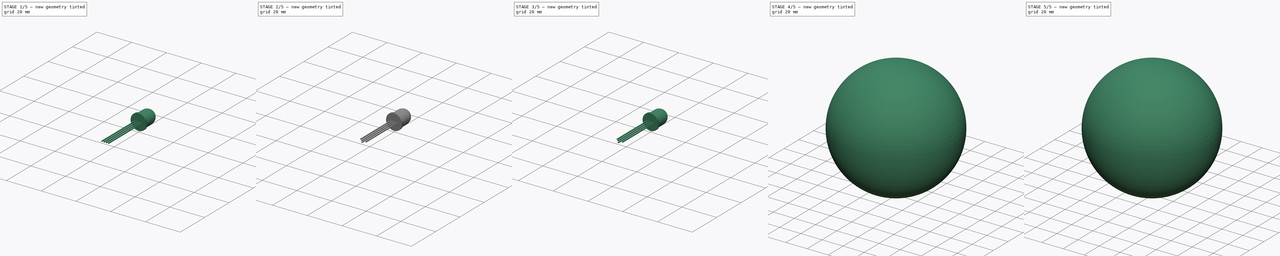
[diagram: build sequence overview — one tinted view per stage of 5, left to right]
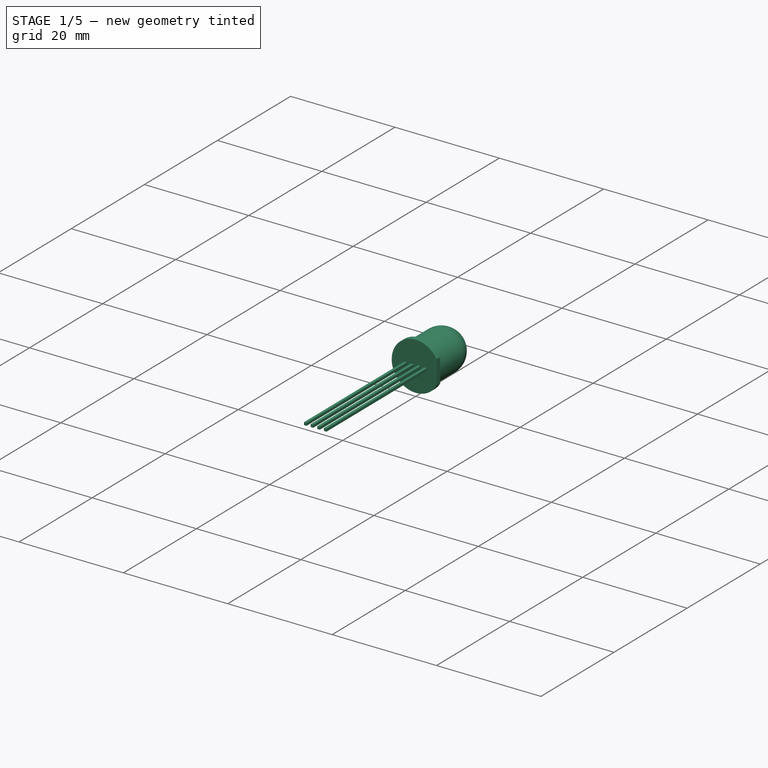
[diagram: stage 1 of 5 — iso view after this stage's code; geometry added in this stage tinted green]
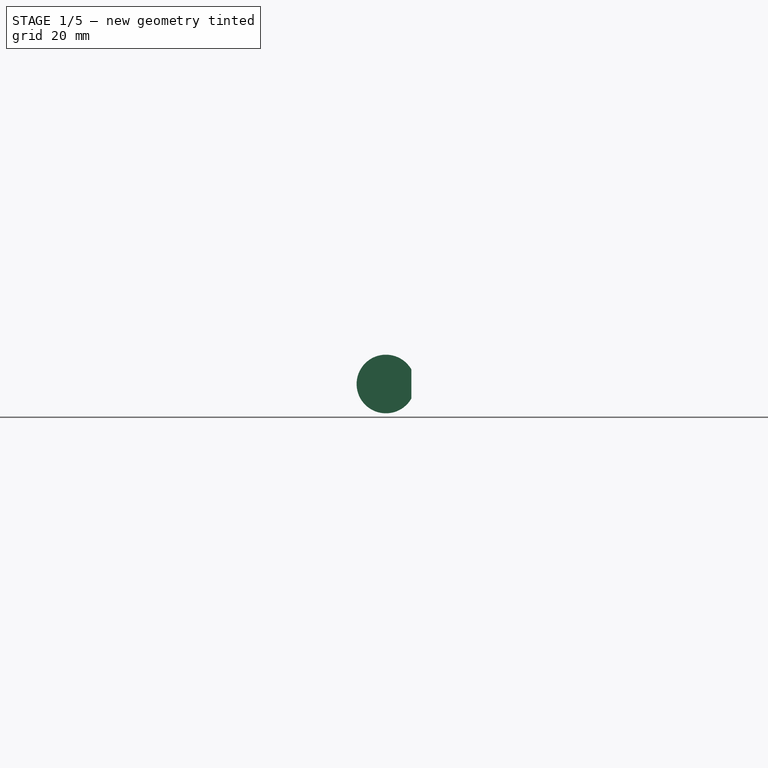
[diagram: stage 1 of 5 — front view after this stage's code; geometry added in this stage tinted green]
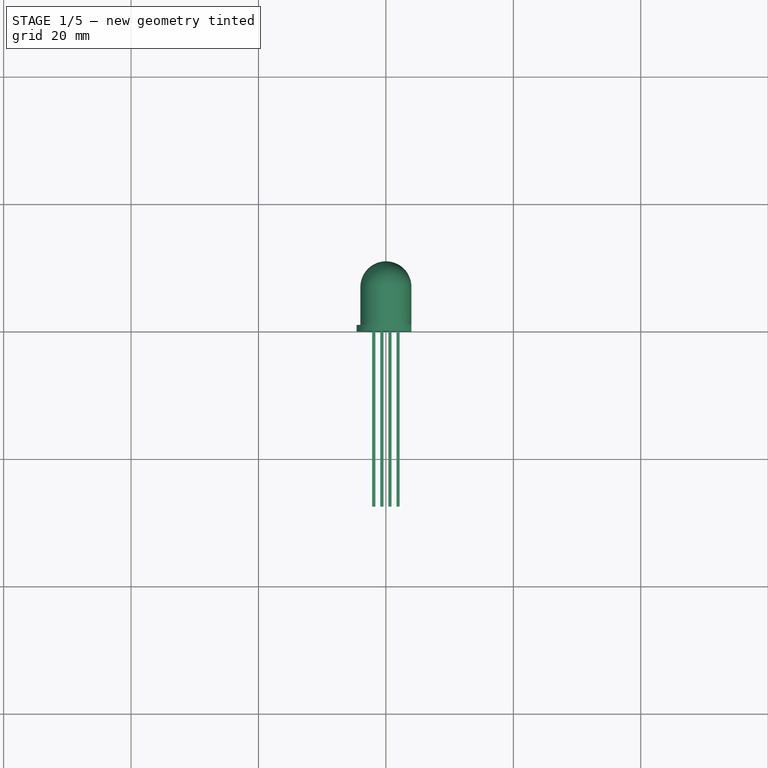
[diagram: stage 1 of 5 — top view after this stage's code; geometry added in this stage tinted green]
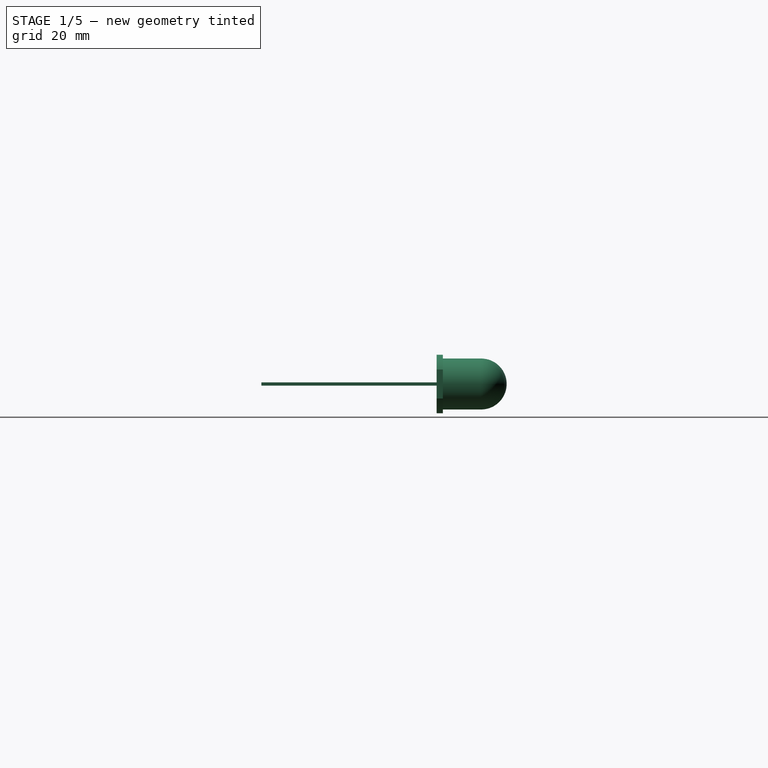
[diagram: stage 1 of 5 — right view after this stage's code; geometry added in this stage tinted green]
FCSTD DOCUMENT  (FreeCAD 0.20R26858 (Git))
Label: base
License: All rights reserved
LicenseURL: http://en.wikipedia.org/wiki/All_rights_reserved
objects: Part::Part2DObjectPython×27, Sketcher::SketchObject×17, Part::Feature×12, PartDesign::Pocket×9, App::DocumentObjectGroup×3, PartDesign::Revolution×3, PartDesign::Pad×3, PartDesign::CoordinateSystem×3, PartDesign::Body×3, Part::FeaturePython×2, Part::Compound×2, Spreadsheet::Sheet×1, Part::Sphere×1
note: 96 computed .brp shape members not serialized (recipe doc carries the construction recipe); baked Part::Feature solids carry a one-line shape summary decoded from their .brp

FEATURE [PartDesign::CoordinateSystem] Local_CS001
  AttacherType = Attacher::AttachEngine3D
  MapMode = 45
  Placement = pos=(-0.122799,0,-1e-16) rot=(-1,0,0;1.5708rad)
  Support = -> [Pocket003]
FEATURE [PartDesign::Body] Body001  label="LED001"
  AttacherType = Attacher::AttachEngine3D
  Group = -> [Sketch009,Revolution001,Sketch008,Pad001,Sketch010,Pocket004,Sketch011,Pocket005,Sketch007,Pocket003,Local_CS001]
  Origin = -> Origin001
  Placement = pos=(-5.34791,-6.43771,2.63235) rot=(-0.271177,-0.193279,-0.942924;0.367193rad)
  Tip = -> Pocket003
FEATURE [Part::Part2DObjectPython] Line020  # Draft 2D object (typed FeaturePython)
  Area = 0
  ChamferSize = 0
  Closed = false
  End = (-30.6974,-37.5716,12.0849)
  FilletRadius = 0
  Length = 50
  MakeFace = false
  Placement = pos=(0,0,0) rot=(-0.980459,0.124484,-0.152327;1.79059rad)
  Points = (2) [(0,0,0),(-17.3493,-4.3604,-46.6904)]
  Start = (0,0,0)
  Subdivisions = 0
FEATURE [Part::Part2DObjectPython] Line021  # Draft 2D object (typed FeaturePython)
  Area = 0
  ChamferSize = 0
  Closed = false
  End = (-26.4946,-42.3444,2.23328)
  FilletRadius = 0
  Length = 50
  MakeFace = false
  Placement = pos=(0,0,0) rot=(-0.980459,0.124484,-0.152327;1.79059rad)
  Points = (2) [(0,0,0),(-12.5207,6.24444,-48.0025)]
  Start = (0,0,0)
  Subdivisions = 0
FEATURE [Part::Part2DObjectPython] Line022  # Draft 2D object (typed FeaturePython)
  Area = 0
  ChamferSize = 0
  Closed = false
  End = (-20.8366,-44.788,-7.73798)
  FilletRadius = 0
  Length = 50
  MakeFace = false
  Placement = pos=(0,0,0) rot=(-0.980459,0.124484,-0.152327;1.79059rad)
  Points = (2) [(0,0,0),(-7.00538,16.5026,-46.6754)]
  Start = (0,0,0)
  Subdivisions = 0
FEATURE [Part::Part2DObjectPython] Line023  # Draft 2D object (typed FeaturePython)
  Area = 0
  ChamferSize = 0
  Closed = false
  End = (-14.7543,-44.8833,-16.3645)
  FilletRadius = 0
  Length = 50
  MakeFace = false
  Placement = pos=(0,0,0) rot=(-0.980459,0.124484,-0.152327;1.79059rad)
  Points = (2) [(0,0,0),(-1.70272,24.9753,-43.282)]
  Start = (0,0,0)
  Subdivisions = 0
FEATURE [Part::Part2DObjectPython] Line024  # Draft 2D object (typed FeaturePython)
  Area = 0
  ChamferSize = 0
  Closed = false
  End = (-20.7967,-43.6356,12.7841)
  FilletRadius = 0
  Length = 50
  MakeFace = false
  Placement = pos=(0,0,0) rot=(-0.980459,0.124484,-0.152327;1.79059rad)
  Points = (2) [(0,0,0),(-6.07004,-3.83788,-49.4816)]
  Start = (0,0,0)
  Subdivisions = 0
FEATURE [Part::Part2DObjectPython] Line025  # Draft 2D object (typed FeaturePython)
  Area = 0
  ChamferSize = 0
  Closed = false
  End = (-9.06672,-47.4842,12.769)
  FilletRadius = 0
  Length = 50
  MakeFace = false
  Placement = pos=(0,0,0) rot=(-0.980459,0.124484,-0.152327;1.79059rad)
  Points = (2) [(0,0,0),(6.25041,-3.05667,-49.5135)]
  Start = (0,0,0)
  Subdivisions = 0
FEATURE [Sketcher::SketchObject] Sketch014
  FullyConstrained = true
  MapMode = 5
  Support = -> [XY_Plane002]
  sketch-geometry (7):
    g0: ArcOfCircle CenterX=0 CenterY=7 CenterZ=0 NormalX=0 NormalY=0 NormalZ=1 AngleXU=0 Radius=4 StartAngle=0 EndAngle=1.5708
    g1: LineSegment StartX=0 StartY=7 StartZ=0 EndX=4 EndY=7 EndZ=0
    g2: LineSegment StartX=4 StartY=7 StartZ=0 EndX=4 EndY=1 EndZ=0
    g3: LineSegment StartX=4 StartY=1 StartZ=0 EndX=4.6 EndY=1 EndZ=0
    g4: LineSegment StartX=4.6 StartY=1 StartZ=0 EndX=4.6 EndY=0 EndZ=0
    g5: LineSegment StartX=4.6 StartY=0 StartZ=0 EndX=0 EndY=0 EndZ=0
    g6: LineSegment StartX=0 StartY=0 StartZ=0 EndX=2e-16 EndY=11 EndZ=0
  constraints (20):
    c: PointOnObject(g0,g-2)
    c: PointOnObject(g0,g-2)
    c: Radius(g0) = 4
    c: Coincident(g1,g0)
    c: Horizontal(g1)
    c: Coincident(g0,g1)
    c: Coincident(g2,g0)
    c: Vertical(g2)
    c: Coincident(g3,g2)
    c: Horizontal(g3)
    c: Coincident(g4,g3)
    c: PointOnObject(g4,g-1)
    c: Vertical(g4)
    c: Coincident(g5,g4)
    c: Coincident(g5,g-1)
    c: DistanceY(g4,g4) = 1
    c: Coincident(g6,g5)
    c: Coincident(g6,g0)
    c: DistanceY(g6,g6) = 11
    c: DistanceX(g5,g4) = 4.6
FEATURE [PartDesign::Revolution] Revolution002
  Angle = 360
  Axis = (0,1,0)
  Base = (0,0,0)
  Profile = -> Sketch014
  ReferenceAxis = -> Sketch014 [V_Axis]
FEATURE [Sketcher::SketchObject] Sketch013
  FullyConstrained = true
  MapMode = 5
  Placement = pos=(0,0,0) rot=(1,0,0;1.5708rad)
  Support = -> [Revolution002]
  sketch-geometry (16):
    g0: LineSegment StartX=0.385 StartY=0.25 StartZ=0 EndX=0.885 EndY=0.25 EndZ=0
    g1: LineSegment StartX=0.885 StartY=0.25 StartZ=0 EndX=0.885 EndY=-0.25 EndZ=0
    g2: LineSegment StartX=0.885 StartY=-0.25 StartZ=0 EndX=0.385 EndY=-0.25 EndZ=0
    g3: LineSegment StartX=0.385 StartY=-0.25 StartZ=0 EndX=0.385 EndY=0.25 EndZ=0
    g4: LineSegment StartX=1.655 StartY=0.25 StartZ=0 EndX=2.155 EndY=0.25 EndZ=0
    g5: LineSegment StartX=2.155 StartY=0.25 StartZ=0 EndX=2.155 EndY=-0.25 EndZ=0
    g6: LineSegment StartX=2.155 StartY=-0.25 StartZ=0 EndX=1.655 EndY=-0.25 EndZ=0
    g7: LineSegment StartX=1.655 StartY=-0.25 StartZ=0 EndX=1.655 EndY=0.25 EndZ=0
    g8: LineSegment StartX=-0.385 StartY=0.25 StartZ=0 EndX=-0.885 EndY=0.25 EndZ=0
    g9: LineSegment StartX=-0.885 StartY=0.25 StartZ=0 EndX=-0.885 EndY=-0.25 EndZ=0
    g10: LineSegment StartX=-0.885 StartY=-0.25 StartZ=0 EndX=-0.385 EndY=-0.25 EndZ=0
    g11: LineSegment StartX=-0.385 StartY=-0.25 StartZ=0 EndX=-0.385 EndY=0.25 EndZ=0
    g12: LineSegment StartX=-1.655 StartY=0.25 StartZ=0 EndX=-2.155 EndY=0.25 EndZ=0
    g13: LineSegment StartX=-2.155 StartY=0.25 StartZ=0 EndX=-2.155 EndY=-0.25 EndZ=0
    g14: LineSegment StartX=-2.155 StartY=-0.25 StartZ=0 EndX=-1.655 EndY=-0.25 EndZ=0
    g15: LineSegment StartX=-1.655 StartY=-0.25 StartZ=0 EndX=-1.655 EndY=0.25 EndZ=0
  constraints (42):
    c: Coincident(g0,g1)
    c: Coincident(g1,g2)
    c: Coincident(g2,g3)
    c: Coincident(g3,g0)
    c: Horizontal(g0)
    c: Horizontal(g2)
    c: Vertical(g3)
    c: Coincident(g4,g5)
    c: Coincident(g5,g6)
    c: Coincident(g6,g7)
    c: Coincident(g7,g4)
    c: Horizontal(g4)
    c: Horizontal(g6)
    c: Vertical(g7)
    c: Coincident(g8,g9)
    c: Coincident(g9,g10)
    c: Coincident(g10,g11)
    c: Coincident(g11,g8)
    c: Horizontal(g8)
    c: Horizontal(g10)
    c: Vertical(g9)
    c: Coincident(g12,g13)
    c: Coincident(g13,g14)
    c: Coincident(g14,g15)
    c: Coincident(g15,g12)
    c: Horizontal(g12)
    c: Horizontal(g14)
    c: Vertical(g13)
    c: DistanceX(g14,g14) = 0.5
    c: Equal(g8,g12)
    c: Equal(g0,g12)
    c: Equal(g12,g4)
    c: DistanceY(g15,g15) = 0.5
    c: Equal(g9,g13)
    c: Symmetric(g12,g14,g-1)
    c: Symmetric(g8,g10,g-1)
    c: Symmetric(g0,g1,g-1)
    c: Symmetric(g4,g5,g-1)
    c: Symmetric(g12,g4,g-2)
    c: Symmetric(g8,g0,g-2)
    c: DistanceX(g10,g1) = 1.27
    c: DistanceX(g14,g10) = 1.27
FEATURE [PartDesign::Pad] Pad002
  BaseFeature = -> Revolution002
  Direction = (0,-1,2e-16)
  Length = 27.5
  Length2 = 100
  Profile = -> Sketch013
  Type = 0
FEATURE [Sketcher::SketchObject] Sketch015
  FullyConstrained = false
  MapMode = 5
  Placement = pos=(0,0,0) rot=(1,0,0;1.5708rad)
  Support = -> [Pad002]
  sketch-geometry (5):
    g0: GeomPoint X=4 Y=0 Z=0
    g1: LineSegment StartX=4 StartY=3.04911 StartZ=0 EndX=4 EndY=-3.04911 EndZ=0
    g2: LineSegment StartX=4 StartY=-3.04911 StartZ=0 EndX=5 EndY=-3.04911 EndZ=0
    g3: LineSegment StartX=5 StartY=-3.04911 StartZ=0 EndX=5 EndY=3.04911 EndZ=0
    g4: LineSegment StartX=5 StartY=3.04911 StartZ=0 EndX=4 EndY=3.04911 EndZ=0
  constraints (12):
    c: PointOnObject(g0,g-1)
    c: DistanceX(g-1,g0) = 4
    c: Coincident(g2,g1)
    c: Horizontal(g2)
    c: Coincident(g3,g2)
    c: Vertical(g3)
    c: Coincident(g4,g3)
    c: Coincident(g4,g1)
    c: Horizontal(g4)
    c: PointOnObject(g0,g1)
    c: DistanceX(g4,g4) = 1
    c: Symmetric(g1,g1,g-1)
FEATURE [PartDesign::Pocket] Pocket007
  BaseFeature = -> Pad002
  Direction = (0,1,-2e-16)
  Length = 5
  Length2 = 100
  Profile = -> Sketch015
  Type = 0
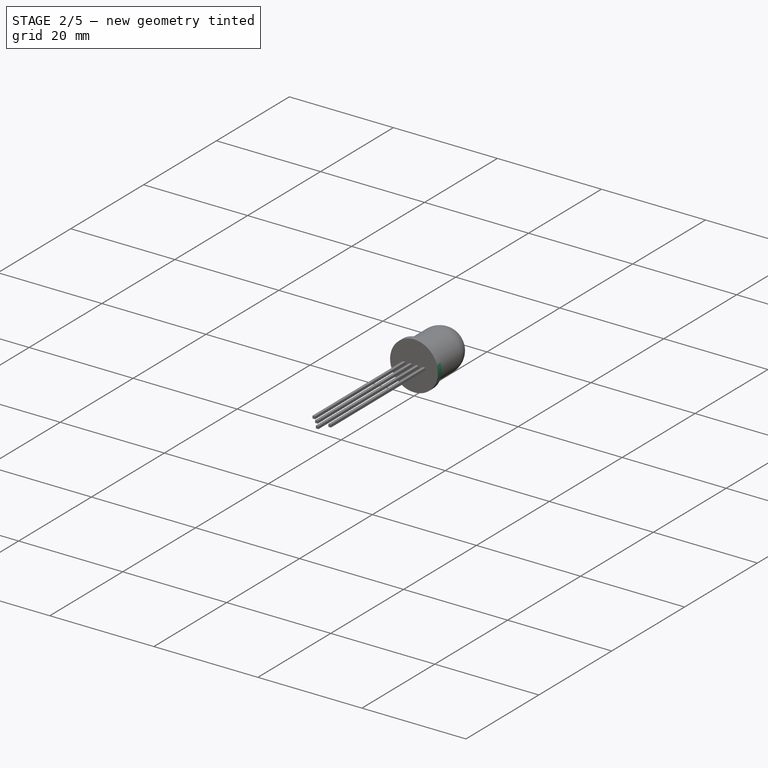
[diagram: stage 2 of 5 — iso view after this stage's code; geometry added in this stage tinted green]
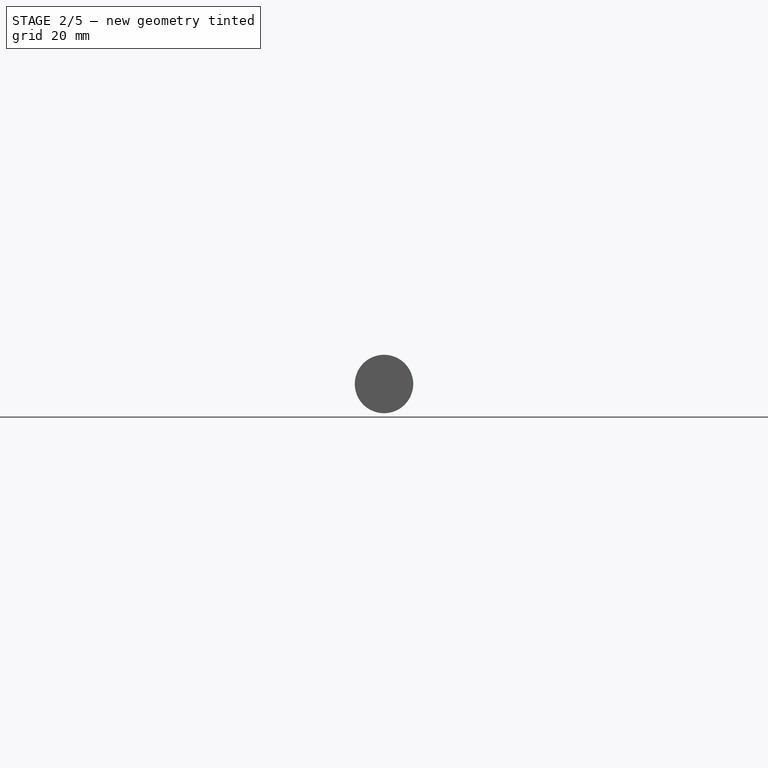
[diagram: stage 2 of 5 — front view after this stage's code; geometry added in this stage tinted green]
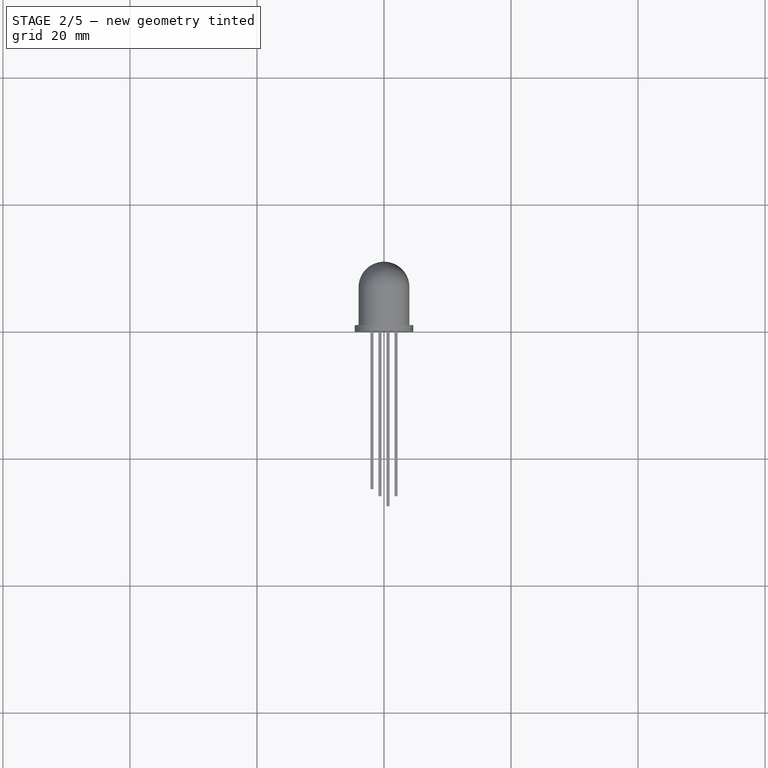
[diagram: stage 2 of 5 — top view after this stage's code; geometry added in this stage tinted green]
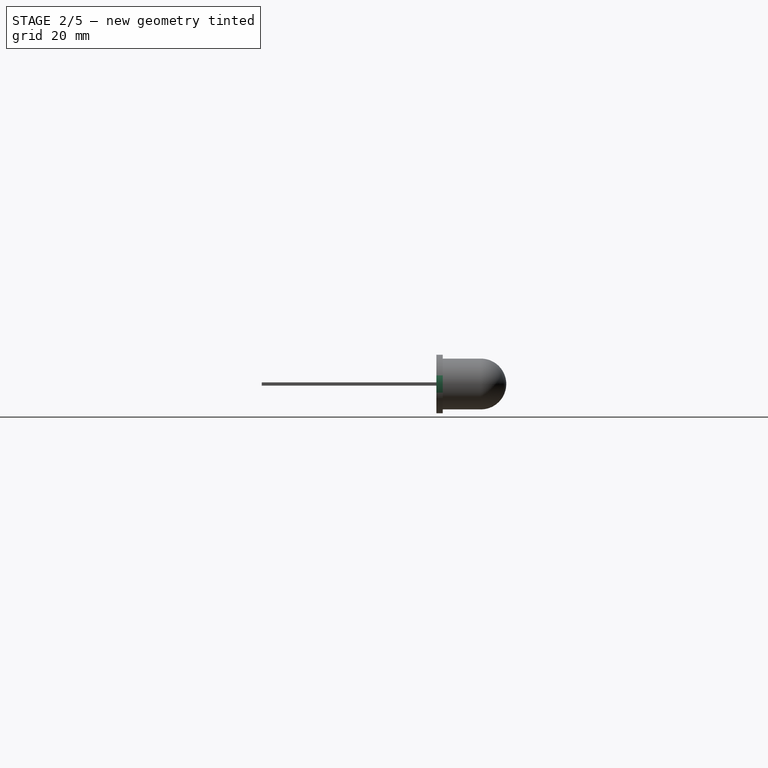
[diagram: stage 2 of 5 — right view after this stage's code; geometry added in this stage tinted green]
FEATURE [Sketcher::SketchObject] Sketch006
  ExternalGeometry = -> [Solid001,Polygon]
  FullyConstrained = false
  MapMode = 45
  Placement = pos=(-11.5751,-35.3006,7.08876) rot=(-0.846339,0.501972,0.178143;1.8016rad)
  Support = -> [Solid001]
  sketch-geometry (21):
    g0: LineSegment StartX=0 StartY=0 StartZ=0 EndX=-28.0194 EndY=6.58998 EndZ=0
    g1: LineSegment StartX=-21.2054 StartY=4.98735 StartZ=0 EndX=6.2835 EndY=-20.8581 EndZ=0
    g2: LineSegment StartX=6.2835 StartY=-20.8581 StartZ=0 EndX=14.9219 EndY=15.8707 EndZ=0
    g3: LineSegment StartX=14.9219 StartY=15.8707 StartZ=0 EndX=-21.2054 EndY=4.98735 EndZ=0
    g4: Circle CenterX=0 CenterY=0 CenterZ=0 NormalX=0 NormalY=0 NormalZ=1 AngleXU=0 Radius=21.784
    g5: LineSegment StartX=-21.2054 StartY=4.98735 StartZ=0 EndX=-12.1736 EndY=7.70819 EndZ=0
    g6: LineSegment StartX=-12.1736 StartY=7.70819 StartZ=0 EndX=-3.14175 EndY=10.429 EndZ=0
    g7: LineSegment StartX=-3.14175 StartY=10.429 StartZ=0 EndX=5.89005 EndY=13.1499 EndZ=0
    g8: LineSegment StartX=5.89005 StartY=13.1499 StartZ=0 EndX=14.9219 EndY=15.8707 EndZ=0
    g9: Circle CenterX=14.9219 CenterY=15.8707 CenterZ=0 NormalX=0 NormalY=0 NormalZ=1 AngleXU=0 Radius=1.47713
    g10: Circle CenterX=5.89005 CenterY=13.1499 CenterZ=0 NormalX=0 NormalY=0 NormalZ=1 AngleXU=0 Radius=1.54031
    g11: Circle CenterX=-3.14175 CenterY=10.429 CenterZ=0 NormalX=0 NormalY=0 NormalZ=1 AngleXU=0 Radius=1.61191
    g12: Circle CenterX=-12.1736 CenterY=7.70819 CenterZ=0 NormalX=0 NormalY=0 NormalZ=1 AngleXU=0 Radius=1.76005
    g13: Circle CenterX=-21.2054 CenterY=4.98735 CenterZ=0 NormalX=0 NormalY=0 NormalZ=1 AngleXU=0 Radius=1.99945
    g14: LineSegment StartX=-12.1736 StartY=7.70819 StartZ=0 EndX=8.44309 EndY=-11.6759 EndZ=0
    g15: LineSegment StartX=-3.14175 StartY=10.429 StartZ=0 EndX=-7.46093 EndY=-7.93535 EndZ=0
    g16: LineSegment StartX=5.89005 StartY=13.1499 StartZ=0 EndX=-0.588712 EndY=-14.3967 EndZ=0
    g17: GeomPoint X=1.57088 Y=-5.21451 Z=0
    g18: Circle CenterX=1.57088 CenterY=-5.21451 CenterZ=0 NormalX=0 NormalY=0 NormalZ=1 AngleXU=0 Radius=1.7396
    g19: GeomPoint X=-5.30134 Y=1.24684 Z=0
    g20: Circle CenterX=-5.30134 CenterY=1.24684 CenterZ=0 NormalX=0 NormalY=0 NormalZ=1 AngleXU=0 Radius=1.66954
  constraints (44):
    c: Coincident(g0,g-1)
    c: Coincident(g0,g-5)
    c: Coincident(g1,g2)
    c: Coincident(g2,g3)
    c: Coincident(g3,g1)
    c: Equal(g1,g2)
    c: Equal(g1,g3)
    c: PointOnObject(g1,g4)
    c: PointOnObject(g2,g4)
    c: PointOnObject(g3,g4)
    c: Coincident(g4,g-1)
    c: PointOnObject(g3,g0)
    c: Distance(g1,g0) = 7
    c: Coincident(g5,g1)
    c: Coincident(g6,g5)
    c: Equal(g5,g6)
    c: Equal(g6,g7)
    c: Equal(g7,g8)
    c: Coincident(g6,g7)
    c: Coincident(g8,g7)
    c: Coincident(g8,g2)
    c: PointOnObject(g7,g3)
    c: PointOnObject(g6,g3)
    c: PointOnObject(g5,g3)
    c: Coincident(g9,g2)
    c: Coincident(g10,g7)
    c: Coincident(g11,g6)
    c: Coincident(g12,g5)
    c: Coincident(g13,g1)
    c: Coincident(g14,g12)
    c: PointOnObject(g14,g2)
    c: Parallel(g14,g1)
    c: Coincident(g15,g11)
    c: PointOnObject(g15,g1)
    c: Parallel(g15,g2)
    c: Coincident(g16,g10)
    c: PointOnObject(g16,g1)
    c: Parallel(g16,g2)
    c: PointOnObject(g17,g16)
    c: PointOnObject(g17,g14)
    c: Coincident(g18,g17)
    c: PointOnObject(g19,g15)
    c: PointOnObject(g19,g14)
    c: Coincident(g20,g19)
FEATURE [Part::Part2DObjectPython] Line017  # Draft 2D object (typed FeaturePython)
  Area = 0
  ChamferSize = 0
  Closed = false
  End = (-33.0422,-31.4948,20.4031)
  FilletRadius = 0
  Length = 50
  MakeFace = false
  Placement = pos=(0,0,0) rot=(0.971158,-0.184628,-0.150882;1.39906rad)
  Points = (2) [(0,0,0),(-20.8877,13.7222,43.306)]
  Start = (0,0,0)
  Subdivisions = 0
FEATURE [Part::Part2DObjectPython] Line018  # Draft 2D object (typed FeaturePython)
  Area = 0
  ChamferSize = 0
  Closed = false
  End = (7.02351,-39.1776,17.7472)
  FilletRadius = 0
  Length = 43.5795
  MakeFace = false
  Placement = pos=(0,0,0) rot=(0.971158,-0.184628,-0.150882;1.39906rad)
  Points = (2) [(0,0,0),(19.4132,9.58938,37.8199)]
  Start = (0,0,0)
  Subdivisions = 0
FEATURE [Part::Part2DObjectPython] Line019  # Draft 2D object (typed FeaturePython)
  Area = 0
  ChamferSize = 0
  Closed = false
  End = (-12.8923,-39.2191,-14.2993)
  FilletRadius = 0
  Length = 41.4463
  MakeFace = false
  Placement = pos=(-1e-15,0,-10.6331) rot=(0.971158,-0.184628,-0.150882;1.39906rad)
  Points = (2) [(0,0,0),(-0.845353,-11.4033,39.8377)]
  Start = (-1e-15,0,-10.6331)
  Subdivisions = 0
FEATURE [Sketcher::SketchObject] Sketch009
  FullyConstrained = true
  MapMode = 5
  Support = -> [XY_Plane001]
  sketch-geometry (7):
    g0: ArcOfCircle CenterX=0 CenterY=7 CenterZ=0 NormalX=0 NormalY=0 NormalZ=1 AngleXU=0 Radius=4 StartAngle=0 EndAngle=1.5708
    g1: LineSegment StartX=0 StartY=7 StartZ=0 EndX=4 EndY=7 EndZ=0
    g2: LineSegment StartX=4 StartY=7 StartZ=0 EndX=4 EndY=1 EndZ=0
    g3: LineSegment StartX=4 StartY=1 StartZ=0 EndX=4.6 EndY=1 EndZ=0
    g4: LineSegment StartX=4.6 StartY=1 StartZ=0 EndX=4.6 EndY=0 EndZ=0
    g5: LineSegment StartX=4.6 StartY=0 StartZ=0 EndX=0 EndY=0 EndZ=0
    g6: LineSegment StartX=0 StartY=0 StartZ=0 EndX=2e-16 EndY=11 EndZ=0
  constraints (20):
    c: PointOnObject(g0,g-2)
    c: PointOnObject(g0,g-2)
    c: Radius(g0) = 4
    c: Coincident(g1,g0)
    c: Horizontal(g1)
    c: Coincident(g0,g1)
    c: Coincident(g2,g0)
    c: Vertical(g2)
    c: Coincident(g3,g2)
    c: Horizontal(g3)
    c: Coincident(g4,g3)
    c: PointOnObject(g4,g-1)
    c: Vertical(g4)
    c: Coincident(g5,g4)
    c: Coincident(g5,g-1)
    c: DistanceY(g4,g4) = 1
    c: Coincident(g6,g5)
    c: Coincident(g6,g0)
    c: DistanceY(g6,g6) = 11
    c: DistanceX(g5,g4) = 4.6
FEATURE [PartDesign::Revolution] Revolution001
  Angle = 360
  Axis = (0,1,0)
  Base = (0,0,0)
  Profile = -> Sketch009
  ReferenceAxis = -> Sketch009 [V_Axis]
FEATURE [Sketcher::SketchObject] Sketch016
  ExternalGeometry = -> [Pocket007]
  FullyConstrained = true
  MapMode = 5
  Placement = pos=(0,-27.5,6.1e-15) rot=(1,0,0;1.5708rad)
  Support = -> [Pocket007]
  sketch-geometry (4):
    g0: LineSegment StartX=-2.155 StartY=0.25 StartZ=0 EndX=-1.655 EndY=0.25 EndZ=0
    g1: LineSegment StartX=-1.655 StartY=0.25 StartZ=0 EndX=-1.655 EndY=-0.25 EndZ=0
    g2: LineSegment StartX=-1.655 StartY=-0.25 StartZ=0 EndX=-2.155 EndY=-0.25 EndZ=0
    g3: LineSegment StartX=-2.155 StartY=-0.25 StartZ=0 EndX=-2.155 EndY=0.25 EndZ=0
  constraints (10):
    c: Coincident(g0,g1)
    c: Coincident(g1,g2)
    c: Coincident(g2,g3)
    c: Coincident(g3,g0)
    c: Horizontal(g0)
    c: Horizontal(g2)
    c: Vertical(g1)
    c: Vertical(g3)
    c: Coincident(g0,g-3)
    c: Coincident(g1,g-4)
FEATURE [PartDesign::Pocket] Pocket008
  BaseFeature = -> Pocket007
  Direction = (0,1,-2e-16)
  Length = 2.7
  Length2 = 100
  Profile = -> Sketch016
  Type = 0
FEATURE [Sketcher::SketchObject] Sketch012
  ExternalGeometry = -> [Pocket008]
  FullyConstrained = true
  MapMode = 5
  Placement = pos=(0,-27.5,6.1e-15) rot=(1,0,0;1.5708rad)
  Support = -> [Pocket008]
  sketch-geometry (8):
    g0: LineSegment StartX=-0.885 StartY=0.25 StartZ=0 EndX=-0.385 EndY=0.25 EndZ=0
    g1: LineSegment StartX=-0.385 StartY=0.25 StartZ=0 EndX=-0.385 EndY=-0.25 EndZ=0
    g2: LineSegment StartX=-0.385 StartY=-0.25 StartZ=0 EndX=-0.885 EndY=-0.25 EndZ=0
    g3: LineSegment StartX=-0.885 StartY=-0.25 StartZ=0 EndX=-0.885 EndY=0.25 EndZ=0
    g4: LineSegment StartX=2.155 StartY=-0.25 StartZ=0 EndX=1.655 EndY=-0.25 EndZ=0
    g5: LineSegment StartX=1.655 StartY=-0.25 StartZ=0 EndX=1.655 EndY=0.25 EndZ=0
    g6: LineSegment StartX=1.655 StartY=0.25 StartZ=0 EndX=2.155 EndY=0.25 EndZ=0
    g7: LineSegment StartX=2.155 StartY=0.25 StartZ=0 EndX=2.155 EndY=-0.25 EndZ=0
  constraints (20):
    c: Coincident(g0,g1)
    c: Coincident(g1,g2)
    c: Coincident(g2,g3)
    c: Coincident(g3,g0)
    c: Horizontal(g0)
    c: Horizontal(g2)
    c: Vertical(g1)
    c: Vertical(g3)
    c: Coincident(g0,g-3)
    c: Coincident(g1,g-4)
    c: Coincident(g4,g5)
    c: Coincident(g5,g6)
    c: Coincident(g6,g7)
    c: Coincident(g7,g4)
    c: Horizontal(g4)
    c: Horizontal(g6)
    c: Vertical(g5)
    c: Vertical(g7)
    c: Coincident(g4,g-6)
    c: Coincident(g5,g-5)
FEATURE [PartDesign::Pocket] Pocket006
  BaseFeature = -> Pocket008
  Direction = (0,1,-2e-16)
  Length = 1.6
  Length2 = 100
  Profile = -> Sketch012
  Type = 0
FEATURE [PartDesign::CoordinateSystem] Local_CS002
  AttacherType = Attacher::AttachEngine3D
  MapMode = 45
  Placement = pos=(-0.122799,0,-1e-16) rot=(-1,0,0;1.5708rad)
  Support = -> [Pocket006]
FEATURE [PartDesign::Body] Body002  label="LED002"
  AttacherType = Attacher::AttachEngine3D
  Group = -> [Sketch014,Revolution002,Sketch013,Pad002,Sketch015,Pocket007,Sketch016,Pocket008,Sketch012,Pocket006,Local_CS002]
  Origin = -> Origin002
  Placement = pos=(-20.6386,-42.1549,13.2146) rot=(-0.383421,-0.044745,-0.922489;3.66299rad)
  Tip = -> Pocket006
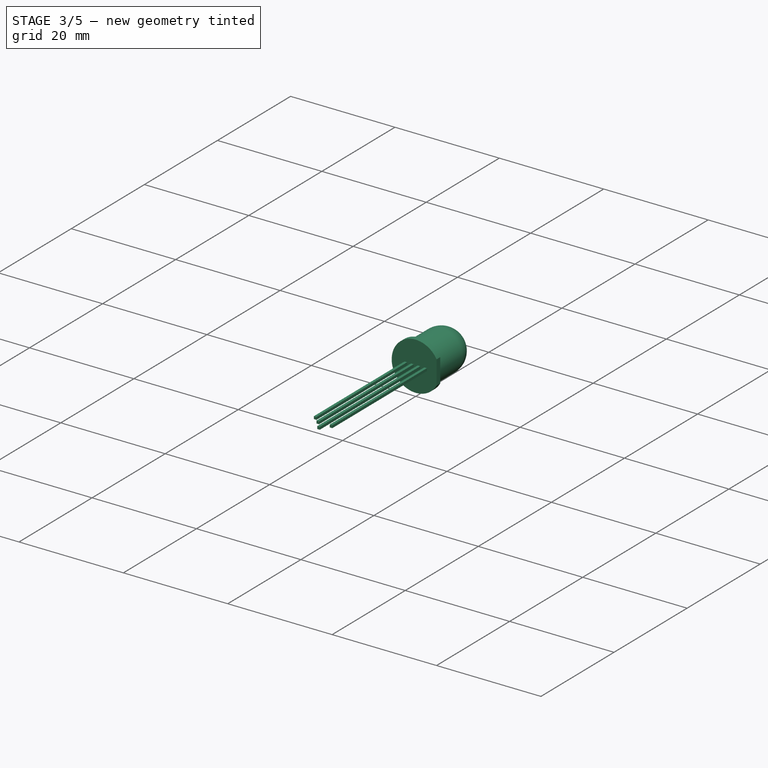
[diagram: stage 3 of 5 — iso view after this stage's code; geometry added in this stage tinted green]
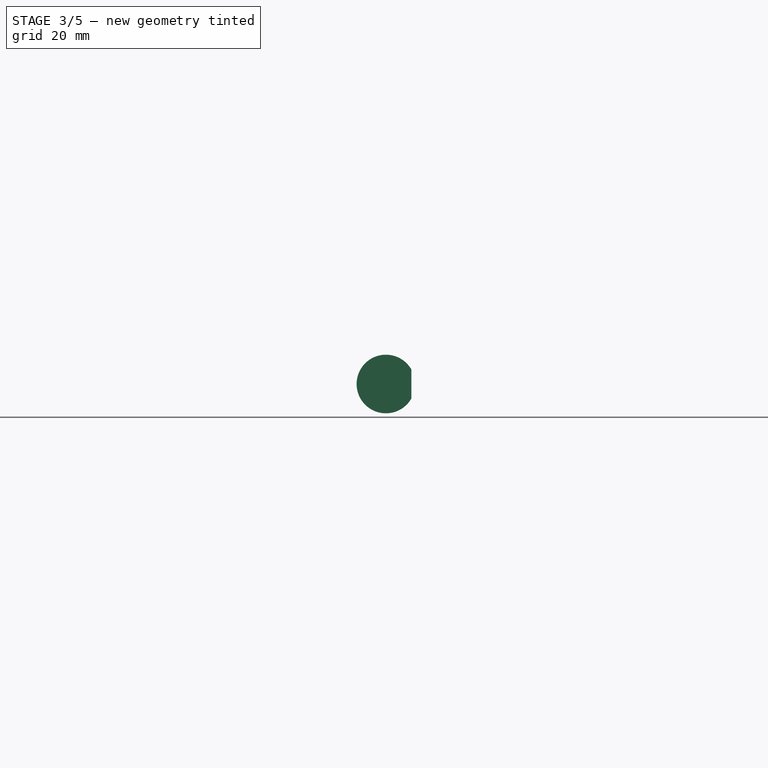
[diagram: stage 3 of 5 — front view after this stage's code; geometry added in this stage tinted green]
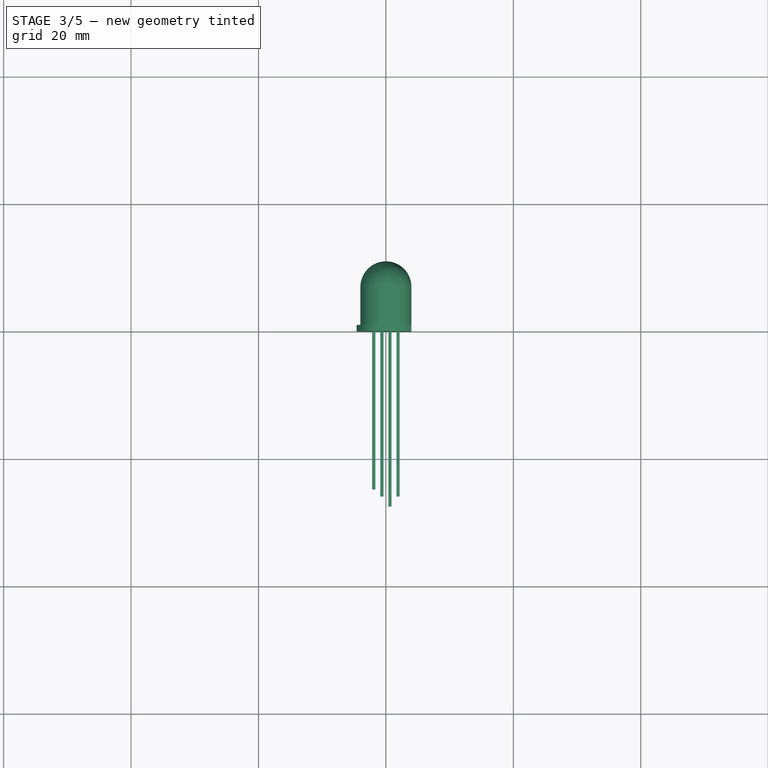
[diagram: stage 3 of 5 — top view after this stage's code; geometry added in this stage tinted green]
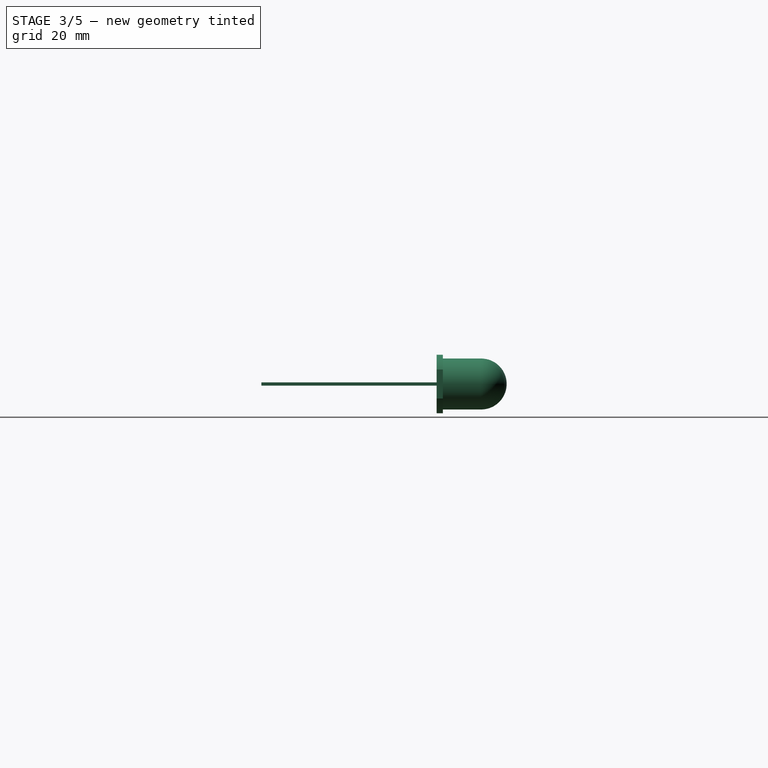
[diagram: stage 3 of 5 — right view after this stage's code; geometry added in this stage tinted green]
FEATURE [Sketcher::SketchObject] Sketch008
  FullyConstrained = true
  MapMode = 5
  Placement = pos=(0,0,0) rot=(1,0,0;1.5708rad)
  Support = -> [Revolution001]
  sketch-geometry (16):
    g0: LineSegment StartX=0.385 StartY=0.25 StartZ=0 EndX=0.885 EndY=0.25 EndZ=0
    g1: LineSegment StartX=0.885 StartY=0.25 StartZ=0 EndX=0.885 EndY=-0.25 EndZ=0
    g2: LineSegment StartX=0.885 StartY=-0.25 StartZ=0 EndX=0.385 EndY=-0.25 EndZ=0
    g3: LineSegment StartX=0.385 StartY=-0.25 StartZ=0 EndX=0.385 EndY=0.25 EndZ=0
    g4: LineSegment StartX=1.655 StartY=0.25 StartZ=0 EndX=2.155 EndY=0.25 EndZ=0
    g5: LineSegment StartX=2.155 StartY=0.25 StartZ=0 EndX=2.155 EndY=-0.25 EndZ=0
    g6: LineSegment StartX=2.155 StartY=-0.25 StartZ=0 EndX=1.655 EndY=-0.25 EndZ=0
    g7: LineSegment StartX=1.655 StartY=-0.25 StartZ=0 EndX=1.655 EndY=0.25 EndZ=0
    g8: LineSegment StartX=-0.385 StartY=0.25 StartZ=0 EndX=-0.885 EndY=0.25 EndZ=0
    g9: LineSegment StartX=-0.885 StartY=0.25 StartZ=0 EndX=-0.885 EndY=-0.25 EndZ=0
    g10: LineSegment StartX=-0.885 StartY=-0.25 StartZ=0 EndX=-0.385 EndY=-0.25 EndZ=0
    g11: LineSegment StartX=-0.385 StartY=-0.25 StartZ=0 EndX=-0.385 EndY=0.25 EndZ=0
    g12: LineSegment StartX=-1.655 StartY=0.25 StartZ=0 EndX=-2.155 EndY=0.25 EndZ=0
    g13: LineSegment StartX=-2.155 StartY=0.25 StartZ=0 EndX=-2.155 EndY=-0.25 EndZ=0
    g14: LineSegment StartX=-2.155 StartY=-0.25 StartZ=0 EndX=-1.655 EndY=-0.25 EndZ=0
    g15: LineSegment StartX=-1.655 StartY=-0.25 StartZ=0 EndX=-1.655 EndY=0.25 EndZ=0
  constraints (42):
    c: Coincident(g0,g1)
    c: Coincident(g1,g2)
    c: Coincident(g2,g3)
    c: Coincident(g3,g0)
    c: Horizontal(g0)
    c: Horizontal(g2)
    c: Vertical(g3)
    c: Coincident(g4,g5)
    c: Coincident(g5,g6)
    c: Coincident(g6,g7)
    c: Coincident(g7,g4)
    c: Horizontal(g4)
    c: Horizontal(g6)
    c: Vertical(g7)
    c: Coincident(g8,g9)
    c: Coincident(g9,g10)
    c: Coincident(g10,g11)
    c: Coincident(g11,g8)
    c: Horizontal(g8)
    c: Horizontal(g10)
    c: Vertical(g9)
    c: Coincident(g12,g13)
    c: Coincident(g13,g14)
    c: Coincident(g14,g15)
    c: Coincident(g15,g12)
    c: Horizontal(g12)
    c: Horizontal(g14)
    c: Vertical(g13)
    c: DistanceX(g14,g14) = 0.5
    c: Equal(g8,g12)
    c: Equal(g0,g12)
    c: Equal(g12,g4)
    c: DistanceY(g15,g15) = 0.5
    c: Equal(g9,g13)
    c: Symmetric(g12,g14,g-1)
    c: Symmetric(g8,g10,g-1)
    c: Symmetric(g0,g1,g-1)
    c: Symmetric(g4,g5,g-1)
    c: Symmetric(g12,g4,g-2)
    c: Symmetric(g8,g0,g-2)
    c: DistanceX(g10,g1) = 1.27
    c: DistanceX(g14,g10) = 1.27
FEATURE [PartDesign::Pad] Pad001
  BaseFeature = -> Revolution001
  Direction = (0,-1,2e-16)
  Length = 27.5
  Length2 = 100
  Profile = -> Sketch008
  Type = 0
FEATURE [Sketcher::SketchObject] Sketch010
  FullyConstrained = false
  MapMode = 5
  Placement = pos=(0,0,0) rot=(1,0,0;1.5708rad)
  Support = -> [Pad001]
  sketch-geometry (5):
    g0: GeomPoint X=4 Y=0 Z=0
    g1: LineSegment StartX=4 StartY=3.04911 StartZ=0 EndX=4 EndY=-3.04911 EndZ=0
    g2: LineSegment StartX=4 StartY=-3.04911 StartZ=0 EndX=5 EndY=-3.04911 EndZ=0
    g3: LineSegment StartX=5 StartY=-3.04911 StartZ=0 EndX=5 EndY=3.04911 EndZ=0
    g4: LineSegment StartX=5 StartY=3.04911 StartZ=0 EndX=4 EndY=3.04911 EndZ=0
  constraints (12):
    c: PointOnObject(g0,g-1)
    c: DistanceX(g-1,g0) = 4
    c: Coincident(g2,g1)
    c: Horizontal(g2)
    c: Coincident(g3,g2)
    c: Vertical(g3)
    c: Coincident(g4,g3)
    c: Coincident(g4,g1)
    c: Horizontal(g4)
    c: PointOnObject(g0,g1)
    c: DistanceX(g4,g4) = 1
    c: Symmetric(g1,g1,g-1)
FEATURE [PartDesign::Pocket] Pocket004
  BaseFeature = -> Pad001
  Direction = (0,1,-2e-16)
  Length = 5
  Length2 = 100
  Profile = -> Sketch010
  Type = 0
FEATURE [Sketcher::SketchObject] Sketch011
  ExternalGeometry = -> [Pocket004]
  FullyConstrained = true
  MapMode = 5
  Placement = pos=(0,-27.5,6.1e-15) rot=(1,0,0;1.5708rad)
  Support = -> [Pocket004]
  sketch-geometry (4):
    g0: LineSegment StartX=-2.155 StartY=0.25 StartZ=0 EndX=-1.655 EndY=0.25 EndZ=0
    g1: LineSegment StartX=-1.655 StartY=0.25 StartZ=0 EndX=-1.655 EndY=-0.25 EndZ=0
    g2: LineSegment StartX=-1.655 StartY=-0.25 StartZ=0 EndX=-2.155 EndY=-0.25 EndZ=0
    g3: LineSegment StartX=-2.155 StartY=-0.25 StartZ=0 EndX=-2.155 EndY=0.25 EndZ=0
  constraints (10):
    c: Coincident(g0,g1)
    c: Coincident(g1,g2)
    c: Coincident(g2,g3)
    c: Coincident(g3,g0)
    c: Horizontal(g0)
    c: Horizontal(g2)
    c: Vertical(g1)
    c: Vertical(g3)
    c: Coincident(g0,g-3)
    c: Coincident(g1,g-4)
FEATURE [PartDesign::Pocket] Pocket005
  BaseFeature = -> Pocket004
  Direction = (0,1,-2e-16)
  Length = 2.7
  Length2 = 100
  Profile = -> Sketch011
  Type = 0
FEATURE [Sketcher::SketchObject] Sketch007
  ExternalGeometry = -> [Pocket005]
  FullyConstrained = true
  MapMode = 5
  Placement = pos=(0,-27.5,6.1e-15) rot=(1,0,0;1.5708rad)
  Support = -> [Pocket005]
  sketch-geometry (8):
    g0: LineSegment StartX=-0.885 StartY=0.25 StartZ=0 EndX=-0.385 EndY=0.25 EndZ=0
    g1: LineSegment StartX=-0.385 StartY=0.25 StartZ=0 EndX=-0.385 EndY=-0.25 EndZ=0
    g2: LineSegment StartX=-0.385 StartY=-0.25 StartZ=0 EndX=-0.885 EndY=-0.25 EndZ=0
    g3: LineSegment StartX=-0.885 StartY=-0.25 StartZ=0 EndX=-0.885 EndY=0.25 EndZ=0
    g4: LineSegment StartX=2.155 StartY=-0.25 StartZ=0 EndX=1.655 EndY=-0.25 EndZ=0
    g5: LineSegment StartX=1.655 StartY=-0.25 StartZ=0 EndX=1.655 EndY=0.25 EndZ=0
    g6: LineSegment StartX=1.655 StartY=0.25 StartZ=0 EndX=2.155 EndY=0.25 EndZ=0
    g7: LineSegment StartX=2.155 StartY=0.25 StartZ=0 EndX=2.155 EndY=-0.25 EndZ=0
  constraints (20):
    c: Coincident(g0,g1)
    c: Coincident(g1,g2)
    c: Coincident(g2,g3)
    c: Coincident(g3,g0)
    c: Horizontal(g0)
    c: Horizontal(g2)
    c: Vertical(g1)
    c: Vertical(g3)
    c: Coincident(g0,g-3)
    c: Coincident(g1,g-4)
    c: Coincident(g4,g5)
    c: Coincident(g5,g6)
    c: Coincident(g6,g7)
    c: Coincident(g7,g4)
    c: Horizontal(g4)
    c: Horizontal(g6)
    c: Vertical(g5)
    c: Vertical(g7)
    c: Coincident(g4,g-6)
    c: Coincident(g5,g-5)
FEATURE [PartDesign::Pocket] Pocket003
  BaseFeature = -> Pocket005
  Direction = (0,1,-2e-16)
  Length = 1.6
  Length2 = 100
  Profile = -> Sketch007
  Type = 0
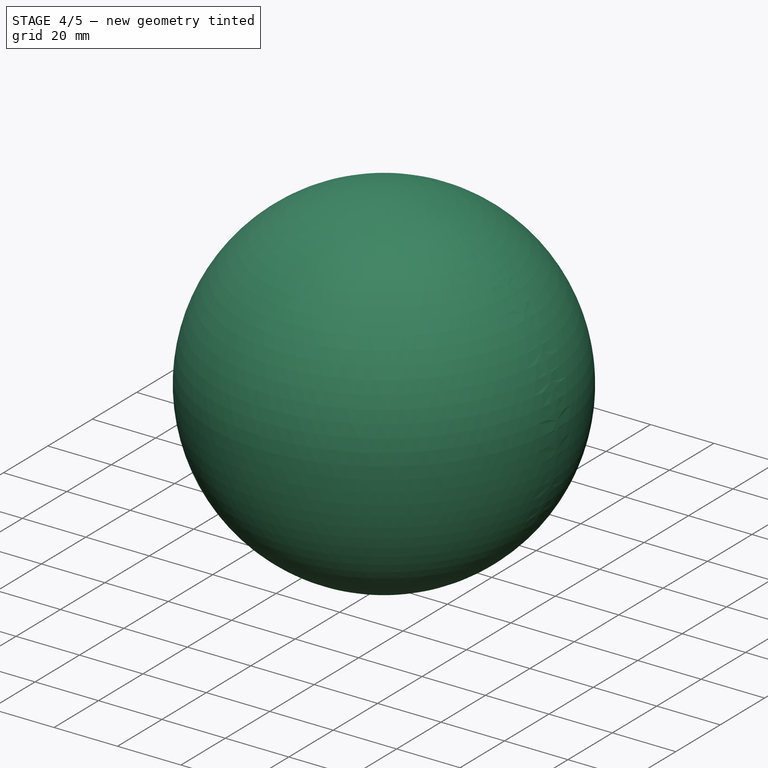
[diagram: stage 4 of 5 — iso view after this stage's code; geometry added in this stage tinted green]
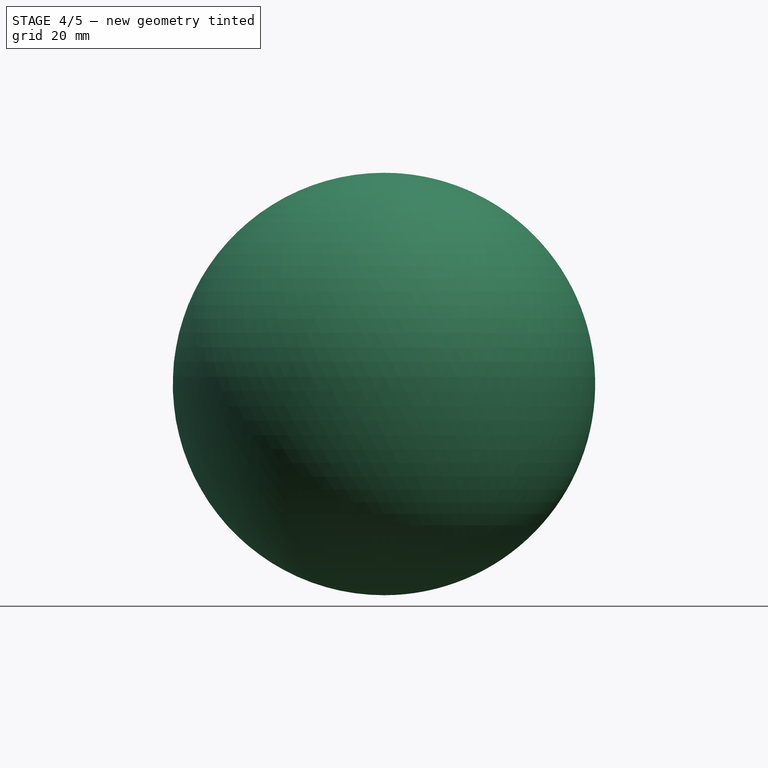
[diagram: stage 4 of 5 — front view after this stage's code; geometry added in this stage tinted green]
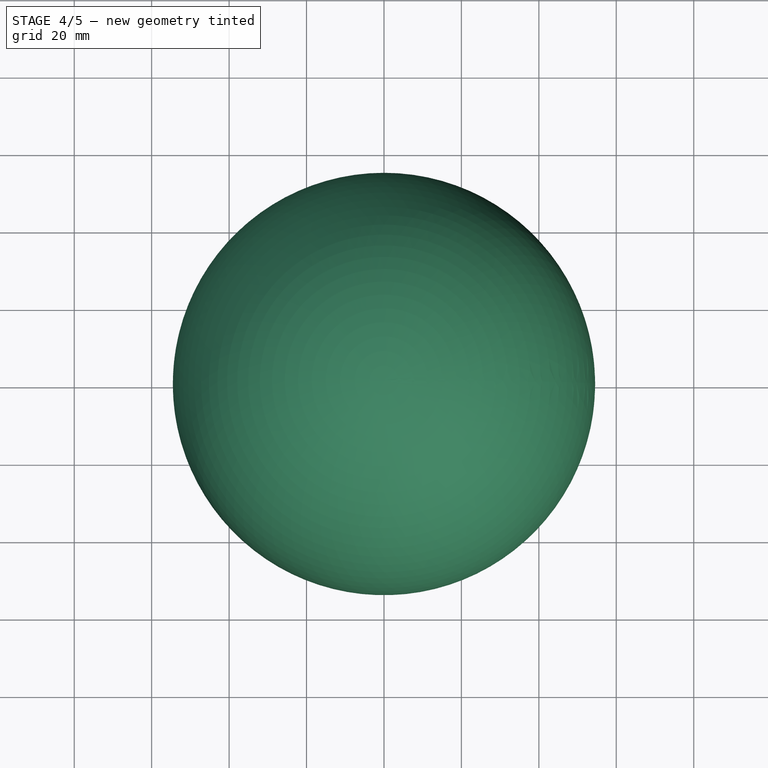
[diagram: stage 4 of 5 — top view after this stage's code; geometry added in this stage tinted green]
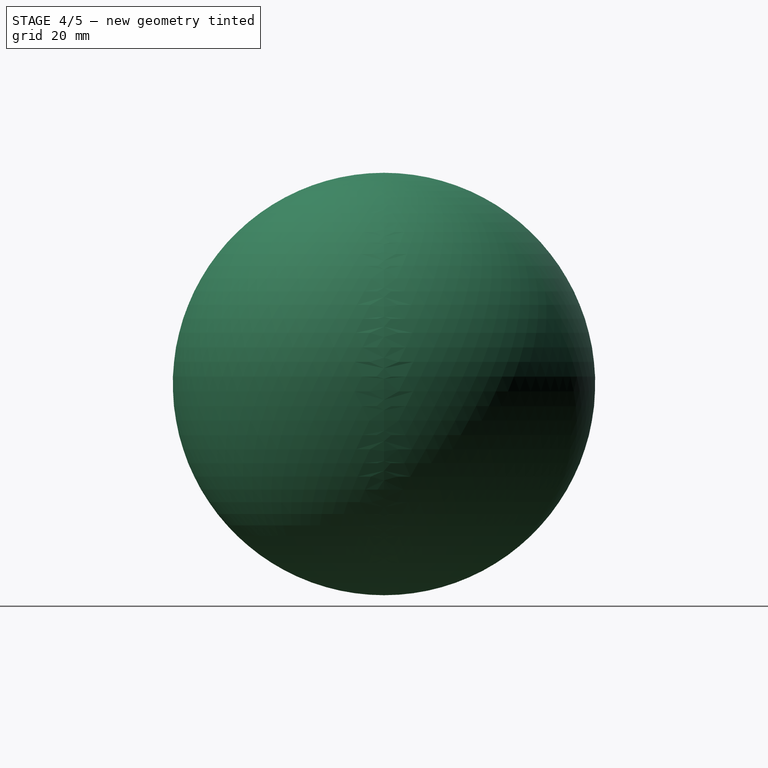
[diagram: stage 4 of 5 — right view after this stage's code; geometry added in this stage tinted green]
FEATURE [Part::FeaturePython] Point  label="center"  # WARN: FeaturePython — macro-defined, semantics opaque (R4)
  X = 0
  Y = 0
  Z = 0
FEATURE [Part::Part2DObjectPython] Polygon  label="top_penta"  # Draft 2D object (typed FeaturePython)
  Area = 0
  ChamferSize = 0
  DrawMode = 0
  FacesNumber = 5
  FilletRadius = 0
  MakeFace = false
  Placement = pos=(0,0,21.2663) rot=(0,0,1;0rad)
  Radius = 42.5325
  expr: .Placement.Base.z = <<Spreadsheet>>.penta_radius / 2
  expr: Radius = <<Spreadsheet>>.penta_radius
FEATURE [Spreadsheet::Sheet] Spreadsheet
  cells = A3=triangle_length; B3(triangle_length)=50; A4=sphere_radius; B4(sphere_radius)==triangle_length / 4 * sqrt(10 + 2 * sqrt(5)); A5=penta_radius; B5(penta_radius)==sqrt((2 * sphere_radius) ^ 2 / 5)
FEATURE [Part::Part2DObjectPython] Polygon001  label="bottom_penta"  # Draft 2D object (typed FeaturePython)
  Area = 0
  ChamferSize = 0
  DrawMode = 0
  FacesNumber = 5
  FilletRadius = 0
  MakeFace = false
  Placement = pos=(-0.315692,0,-21.2663) rot=(0,0,1;3.14159rad)
  Radius = 42.5325
  expr: .Placement.Base.z = -<<Spreadsheet>>.penta_radius / 2
  expr: Radius = <<Spreadsheet>>.penta_radius
FEATURE [Part::Part2DObjectPython] Line  label="top_center"  # Draft 2D object (typed FeaturePython)
  Area = 0
  ChamferSize = 0
  Closed = false
  End = (7e-16,0,21.2663)
  FilletRadius = 0
  Length = 21.2663
  MakeFace = false
  Placement = pos=(0,0,0) rot=(1,0,0;1.5708rad)
  Points = (2) [(0,0,0),(6.51092e-16,21.2663,4.72206e-15)]
  Start = (0,0,0)
  Subdivisions = 0
  expr: Length = <<Spreadsheet>>.penta_radius / 2
FEATURE [Part::Part2DObjectPython] Line001  label="bottom_center"  # Draft 2D object (typed FeaturePython)
  Area = 0
  ChamferSize = 0
  Closed = false
  End = (-7e-16,0,-21.2663)
  FilletRadius = 0
  Length = 21.2663
  MakeFace = false
  Placement = pos=(0,0,0) rot=(1,0,0;1.5708rad)
  Points = (2) [(0,0,0),(-6.51092e-16,-21.2663,-4.72206e-15)]
  Start = (0,0,0)
  Subdivisions = 0
  expr: Length = <<Spreadsheet>>.penta_radius / 2
FEATURE [Part::Part2DObjectPython] Line002  label="top_extension"  # Draft 2D object (typed FeaturePython)
  Area = 0
  ChamferSize = 0
  Closed = false
  End = (8e-16,0,47.5528)
  FilletRadius = 0
  Length = 26.2866
  MakeFace = false
  Placement = pos=(0,0,21.2663) rot=(1,0,0;1.5708rad)
  Points = (2) [(0,0,0),(8.04794e-16,26.2866,5.83679e-15)]
  Start = (0,0,21.2663)
  Subdivisions = 0
  expr: .Placement.Base.z = <<Spreadsheet>>.penta_radius / 2
  expr: Length = <<Spreadsheet>>.sphere_radius - <<Spreadsheet>>.penta_radius / 2
FEATURE [Part::Part2DObjectPython] Line005  label="bottom_extension"  # Draft 2D object (typed FeaturePython)
  Area = 0
  ChamferSize = 0
  Closed = false
  End = (-8e-16,0,-47.5528)
  FilletRadius = 0
  Length = 26.2866
  MakeFace = false
  Placement = pos=(0,0,-21.2663) rot=(1,0,0;1.5708rad)
  Points = (2) [(0,0,0),(-8.04794e-16,-26.2866,-5.83679e-15)]
  Start = (0,0,-21.2663)
  Subdivisions = 0
  expr: .Placement.Base.z = -<<Spreadsheet>>.penta_radius / 2
  expr: Length = <<Spreadsheet>>.sphere_radius - <<Spreadsheet>>.penta_radius / 2
FEATURE [Part::Part2DObjectPython] Circle  # Draft 2D object (typed FeaturePython)
  Area = 0
  FirstAngle = 0
  LastAngle = 0
  MakeFace = false
  Placement = pos=(0,0,0) rot=(1,0,0;1.5708rad)
  Radius = 47.5528
  expr: Radius = <<Spreadsheet>>.sphere_radius
FEATURE [App::DocumentObjectGroup] Group  label="icosahedron_parametric_elements_g"
  Group = -> [Point,Polygon,Spreadsheet,Polygon001,Line,Line001,Circle,Line002,Line005]
FEATURE [Part::Part2DObjectPython] Line006  # Draft 2D object (typed FeaturePython)
  Area = 0
  ChamferSize = 0
  Closed = false
  End = (-13.459,-40.4508,-21.2663)
  FilletRadius = 0
  Length = 49.8665
  MakeFace = false
  Placement = pos=(-34.4095,-25,21.2663) rot=(0,0,1;0rad)
  Points = (2) [(0,0,0),(20.9506,-15.4508,-42.5325)]
  Start = (-34.4095,-25,21.2663)
  Subdivisions = 0
FEATURE [Part::Part2DObjectPython] Line007  # Draft 2D object (typed FeaturePython)
  Area = 0
  ChamferSize = 0
  Closed = false
  End = (13.1433,-40.4508,21.2663)
  FilletRadius = 0
  Length = 50.1667
  MakeFace = false
  Placement = pos=(-13.459,-40.4508,-21.2663) rot=(0,0,1;0rad)
  Points = (2) [(0,0,0),(26.6022,-7.10543e-15,42.5325)]
  Start = (-13.459,-40.4508,-21.2663)
  Subdivisions = 0
FEATURE [Part::Part2DObjectPython] Line008  # Draft 2D object (typed FeaturePython)
  Area = 0
  ChamferSize = 0
  Closed = false
  End = (34.0939,-25,-21.2663)
  FilletRadius = 0
  Length = 49.8665
  MakeFace = false
  Placement = pos=(13.1433,-40.4508,21.2663) rot=(0,0,1;0rad)
  Points = (2) [(0,0,0),(20.9506,15.4508,-42.5325)]
  Start = (13.1433,-40.4508,21.2663)
  Subdivisions = 0
FEATURE [Part::Part2DObjectPython] Line009  # Draft 2D object (typed FeaturePython)
  Area = 0
  ChamferSize = 0
  Closed = false
  End = (0,0,47.5528)
  FilletRadius = 0
  Length = 50
  MakeFace = false
  Placement = pos=(-34.4095,-25,21.2663) rot=(0,0,1;0rad)
  Points = (2) [(0,0,0),(34.4095,25,26.2866)]
  Start = (-34.4095,-25,21.2663)
  Subdivisions = 0
FEATURE [Part::Part2DObjectPython] Line010  # Draft 2D object (typed FeaturePython)
  Area = 0
  ChamferSize = 0
  Closed = false
  End = (0,0,47.5528)
  FilletRadius = 0
  Length = 50
  MakeFace = false
  Placement = pos=(13.1433,-40.4508,21.2663) rot=(0,0,1;0rad)
  Points = (2) [(0,0,0),(-13.1433,40.4508,26.2866)]
  Start = (13.1433,-40.4508,21.2663)
  Subdivisions = 0
FEATURE [Part::Part2DObjectPython] Line011  # Draft 2D object (typed FeaturePython)
  Area = 0
  ChamferSize = 0
  Closed = false
  End = (0,0,-47.5528)
  FilletRadius = 0
  Length = 50.0839
  MakeFace = false
  Placement = pos=(-13.459,-40.4508,-21.2663) rot=(0,0,1;0rad)
  Points = (2) [(0,0,0),(13.459,40.4508,-26.2866)]
  Start = (-13.459,-40.4508,-21.2663)
  Subdivisions = 0
FEATURE [Part::Part2DObjectPython] Line012  # Draft 2D object (typed FeaturePython)
  Area = 0
  ChamferSize = 0
  Closed = false
  End = (0,0,-47.5528)
  FilletRadius = 0
  Length = 49.7833
  MakeFace = false
  Placement = pos=(34.0939,-25,-21.2663) rot=(0,0,1;0rad)
  Points = (2) [(0,0,0),(-34.0939,25,-26.2866)]
  Start = (34.0939,-25,-21.2663)
  Subdivisions = 0
FEATURE [Part::Feature] Face
  shape: bbox 72.85 x 58.23 x 45.09 mm, 1 faces, 0 solids (baked)
FEATURE [Part::Feature] Face001
  shape: bbox 71.56 x 22.64 x 73.74 mm, 1 faces, 0 solids (baked)
FEATURE [Part::Feature] Face002
  shape: bbox 71.56 x 22.64 x 73.74 mm, 1 faces, 0 solids (baked)
FEATURE [Part::Feature] Face003
  shape: bbox 64 x 52.99 x 28.92 mm, 1 faces, 0 solids (baked)
FEATURE [Part::Compound] Compound
  Links = -> [Face,Face001,Face002,Face003]
FEATURE [Part::FeaturePython] Array  # Draft array (typed FeaturePython)
  AlwaysSyncPlacement = false
  Angle = 360
  ArrayType = 1
  Axis = (0,0,1)
  Base = -> Compound
  Center = (0,0,47.55)
  Count = 5
  ExpandArray = false
  Fuse = false
  IntervalAxis = (0,0,0)
  IntervalX = (50,0,0)
  IntervalY = (0,50,0)
  IntervalZ = (0,0,50)
  NumberCircles = 3
  NumberPolar = 5
  NumberX = 2
  NumberY = 2
  NumberZ = 1
  PlacementList = 5 placements: [(0,0,0),(0,0,0),(0,0,7.10543e-15),(0,0,0),(0,0,0)]
  RadialDistance = 50
  ScaleList = (5) [(1,1,1),(1,1,1),(1,1,1),(1,1,1),(1,1,1)]
  Symmetry = 1
  TangentialDistance = 25
FEATURE [Part::Compound] Compound001
  Links = -> [Array]
FEATURE [Part::Feature] Shell
  shape: bbox 108.3 x 107.6 x 99.28 mm, 20 faces, 0 solids (baked)
FEATURE [Part::Feature] Solid
  shape: bbox 108.3 x 107.6 x 99.28 mm, 20 faces (baked)
FEATURE [App::DocumentObjectGroup] Group001  label="icosahedron_solid_g"
  Group = -> [Line006,Line007,Line008,Line009,Line010,Line011,Line012,Compound001,Shell,Solid]
FEATURE [Part::Part2DObjectPython] Line013  # Draft 2D object (typed FeaturePython)
  Area = 0
  ChamferSize = 0
  Closed = false
  End = (-34.4095,-25,21.2663)
  FilletRadius = 0
  Length = 47.5528
  MakeFace = false
  Points = (2) [(0,0,0),(-34.4095,-25,21.2663)]
  Start = (0,0,0)
  Subdivisions = 0
FEATURE [Part::Part2DObjectPython] Line014  # Draft 2D object (typed FeaturePython)
  Area = 0
  ChamferSize = 0
  Closed = false
  End = (13.1433,-40.4508,21.2663)
  FilletRadius = 0
  Length = 47.5528
  MakeFace = false
  Points = (2) [(0,0,0),(13.1433,-40.4508,21.2663)]
  Start = (0,0,0)
  Subdivisions = 0
FEATURE [Part::Part2DObjectPython] Line015  # Draft 2D object (typed FeaturePython)
  Area = 0
  ChamferSize = 0
  Closed = false
  End = (34.0939,-25,-21.2663)
  FilletRadius = 0
  Length = 47.3249
  MakeFace = false
  Points = (2) [(0,0,0),(34.0939,-25,-21.2663)]
  Start = (0,0,0)
  Subdivisions = 0
FEATURE [Part::Part2DObjectPython] Line016  # Draft 2D object (typed FeaturePython)
  Area = 0
  ChamferSize = 0
  Closed = false
  End = (-13.459,-40.4508,-21.2663)
  FilletRadius = 0
  Length = 47.641
  MakeFace = false
  Points = (2) [(0,0,0),(-13.459,-40.4508,-21.2663)]
  Start = (0,0,0)
  Subdivisions = 0
FEATURE [Part::Feature] Face004
  shape: bbox 71.56 x 22.64 x 73.74 mm, 1 faces, 0 solids (baked)
FEATURE [Part::Feature] Face005
  shape: bbox 64 x 52.99 x 23.39 mm, 1 faces, 0 solids (baked)
FEATURE [Part::Feature] Face006
  shape: bbox 29.45 x 45.6 x 47.37 mm, 1 faces, 0 solids (baked)
FEATURE [Part::Feature] Face007
  shape: bbox 49.44 x 53.76 x 47.45 mm, 1 faces, 0 solids (baked)
FEATURE [Part::Feature] Shell001
  shape: bbox 74.69 x 56.08 x 73.74 mm, 4 faces, 0 solids (baked)
FEATURE [Part::Feature] Solid001  label="single_pyramid"
  shape: bbox 74.69 x 56.08 x 73.74 mm, 4 faces (baked)
FEATURE [App::DocumentObjectGroup] Group002  label="single_pyramid_g"
  Group = -> [Line013,Line014,Line015,Line016,Face004,Face005,Face006,Face007,Shell001]
FEATURE [Sketcher::SketchObject] Sketch
  ExternalGeometry = -> [Solid001,Polygon,Line006]
  FullyConstrained = true
  MapMode = 45
  Placement = pos=(-11.5751,-35.3006,7.08876) rot=(-0.846339,0.501972,0.178143;1.8016rad)
  Support = -> [Solid001]
  sketch-geometry (1):
    g0: Circle CenterX=0.077706 CenterY=-0.0634767 CenterZ=0 NormalX=0 NormalY=0 NormalZ=1 AngleXU=0 Radius=28.8742
  constraints (3):
    c: PointOnObject(g-5,g0)
    c: PointOnObject(g-5,g0)
    c: PointOnObject(g-4,g0)
FEATURE [Sketcher::SketchObject] Sketch001
  FullyConstrained = true
  MapMode = 5
  Support = -> [XY_Plane]
  sketch-geometry (7):
    g0: ArcOfCircle CenterX=0 CenterY=7 CenterZ=0 NormalX=0 NormalY=0 NormalZ=1 AngleXU=0 Radius=4 StartAngle=0 EndAngle=1.5708
    g1: LineSegment StartX=0 StartY=7 StartZ=0 EndX=4 EndY=7 EndZ=0
    g2: LineSegment StartX=4 StartY=7 StartZ=0 EndX=4 EndY=1 EndZ=0
    g3: LineSegment StartX=4 StartY=1 StartZ=0 EndX=4.6 EndY=1 EndZ=0
    g4: LineSegment StartX=4.6 StartY=1 StartZ=0 EndX=4.6 EndY=0 EndZ=0
    g5: LineSegment StartX=4.6 StartY=0 StartZ=0 EndX=0 EndY=0 EndZ=0
    g6: LineSegment StartX=0 StartY=0 StartZ=0 EndX=2e-16 EndY=11 EndZ=0
  constraints (20):
    c: PointOnObject(g0,g-2)
    c: PointOnObject(g0,g-2)
    c: Radius(g0) = 4
    c: Coincident(g1,g0)
    c: Horizontal(g1)
    c: Coincident(g0,g1)
    c: Coincident(g2,g0)
    c: Vertical(g2)
    c: Coincident(g3,g2)
    c: Horizontal(g3)
    c: Coincident(g4,g3)
    c: PointOnObject(g4,g-1)
    c: Vertical(g4)
    c: Coincident(g5,g4)
    c: Coincident(g5,g-1)
    c: DistanceY(g4,g4) = 1
    c: Coincident(g6,g5)
    c: Coincident(g6,g0)
    c: DistanceY(g6,g6) = 11
    c: DistanceX(g5,g4) = 4.6
FEATURE [PartDesign::Revolution] Revolution
  Angle = 360
  Axis = (0,1,0)
  Base = (0,0,0)
  Profile = -> Sketch001
  ReferenceAxis = -> Sketch001 [V_Axis]
FEATURE [Sketcher::SketchObject] Sketch002
  FullyConstrained = true
  MapMode = 5
  Placement = pos=(0,0,0) rot=(1,0,0;1.5708rad)
  Support = -> [Revolution]
  sketch-geometry (16):
    g0: LineSegment StartX=0.385 StartY=0.25 StartZ=0 EndX=0.885 EndY=0.25 EndZ=0
    g1: LineSegment StartX=0.885 StartY=0.25 StartZ=0 EndX=0.885 EndY=-0.25 EndZ=0
    g2: LineSegment StartX=0.885 StartY=-0.25 StartZ=0 EndX=0.385 EndY=-0.25 EndZ=0
    g3: LineSegment StartX=0.385 StartY=-0.25 StartZ=0 EndX=0.385 EndY=0.25 EndZ=0
    g4: LineSegment StartX=1.655 StartY=0.25 StartZ=0 EndX=2.155 EndY=0.25 EndZ=0
    g5: LineSegment StartX=2.155 StartY=0.25 StartZ=0 EndX=2.155 EndY=-0.25 EndZ=0
    g6: LineSegment StartX=2.155 StartY=-0.25 StartZ=0 EndX=1.655 EndY=-0.25 EndZ=0
    g7: LineSegment StartX=1.655 StartY=-0.25 StartZ=0 EndX=1.655 EndY=0.25 EndZ=0
    g8: LineSegment StartX=-0.385 StartY=0.25 StartZ=0 EndX=-0.885 EndY=0.25 EndZ=0
    g9: LineSegment StartX=-0.885 StartY=0.25 StartZ=0 EndX=-0.885 EndY=-0.25 EndZ=0
    g10: LineSegment StartX=-0.885 StartY=-0.25 StartZ=0 EndX=-0.385 EndY=-0.25 EndZ=0
    g11: LineSegment StartX=-0.385 StartY=-0.25 StartZ=0 EndX=-0.385 EndY=0.25 EndZ=0
    g12: LineSegment StartX=-1.655 StartY=0.25 StartZ=0 EndX=-2.155 EndY=0.25 EndZ=0
    g13: LineSegment StartX=-2.155 StartY=0.25 StartZ=0 EndX=-2.155 EndY=-0.25 EndZ=0
    g14: LineSegment StartX=-2.155 StartY=-0.25 StartZ=0 EndX=-1.655 EndY=-0.25 EndZ=0
    g15: LineSegment StartX=-1.655 StartY=-0.25 StartZ=0 EndX=-1.655 EndY=0.25 EndZ=0
  constraints (42):
    c: Coincident(g0,g1)
    c: Coincident(g1,g2)
    c: Coincident(g2,g3)
    c: Coincident(g3,g0)
    c: Horizontal(g0)
    c: Horizontal(g2)
    c: Vertical(g3)
    c: Coincident(g4,g5)
    c: Coincident(g5,g6)
    c: Coincident(g6,g7)
    c: Coincident(g7,g4)
    c: Horizontal(g4)
    c: Horizontal(g6)
    c: Vertical(g7)
    c: Coincident(g8,g9)
    c: Coincident(g9,g10)
    c: Coincident(g10,g11)
    c: Coincident(g11,g8)
    c: Horizontal(g8)
    c: Horizontal(g10)
    c: Vertical(g9)
    c: Coincident(g12,g13)
    c: Coincident(g13,g14)
    c: Coincident(g14,g15)
    c: Coincident(g15,g12)
    c: Horizontal(g12)
    c: Horizontal(g14)
    c: Vertical(g13)
    c: DistanceX(g14,g14) = 0.5
    c: Equal(g8,g12)
    c: Equal(g0,g12)
    c: Equal(g12,g4)
    c: DistanceY(g15,g15) = 0.5
    c: Equal(g9,g13)
    c: Symmetric(g12,g14,g-1)
    c: Symmetric(g8,g10,g-1)
    c: Symmetric(g0,g1,g-1)
    c: Symmetric(g4,g5,g-1)
    c: Symmetric(g12,g4,g-2)
    c: Symmetric(g8,g0,g-2)
    c: DistanceX(g10,g1) = 1.27
    c: DistanceX(g14,g10) = 1.27
FEATURE [PartDesign::Pad] Pad
  BaseFeature = -> Revolution
  Direction = (1,1,1)
  Length = 27.5
  Length2 = 100
  Profile = -> Sketch002
  Type = 0
FEATURE [PartDesign::CoordinateSystem] Local_CS
  AttacherType = Attacher::AttachEngine3D
  MapMode = 45
  Placement = pos=(-0.122799,0,-4e-16) rot=(-1,0,0;1.5708rad)
  Support = -> [Pocket002]
FEATURE [PartDesign::Body] Body  label="LED"
  AttacherType = Attacher::AttachEngine3D
  Group = -> [Sketch001,Revolution,Sketch002,Pad,Sketch003,Pocket,Sketch004,Pocket001,Sketch005,Pocket002,Local_CS]
  Origin = -> Origin
  Placement = pos=(-33.0121,-31.0176,21.1886) rot=(0.52988,-0.002518,0.848069;2.25223rad)
  Tip = -> Pocket002
FEATURE [Part::Sphere] Sphere
  Angle1 = -90
  Angle2 = 90
  Angle3 = 360
  AttacherType = Attacher::AttachEngine3D
  Radius = 54.5528
  expr: Radius = <<Spreadsheet>>.sphere_radius + 7
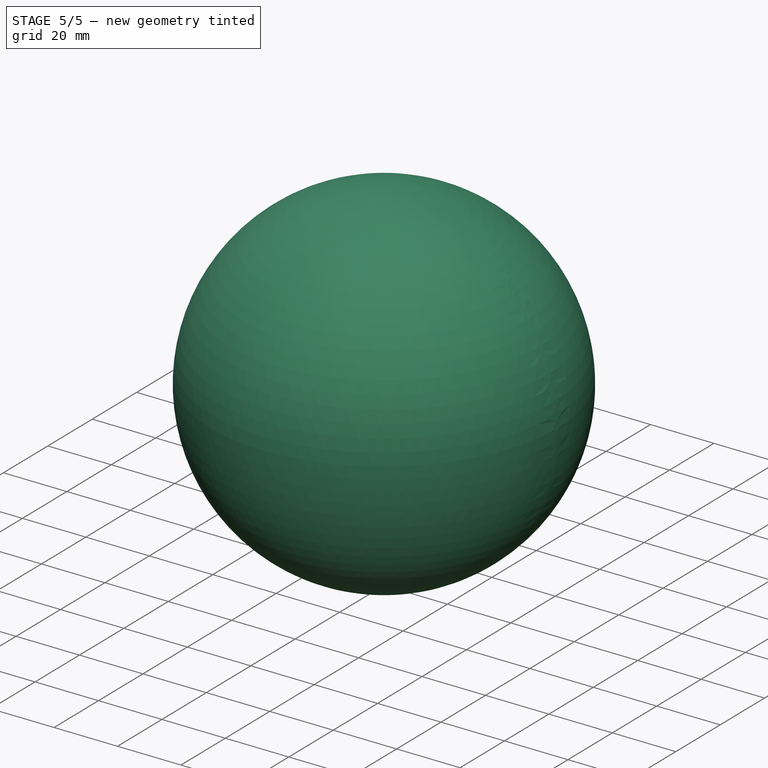
[diagram: stage 5 of 5 — iso view after this stage's code; geometry added in this stage tinted green]
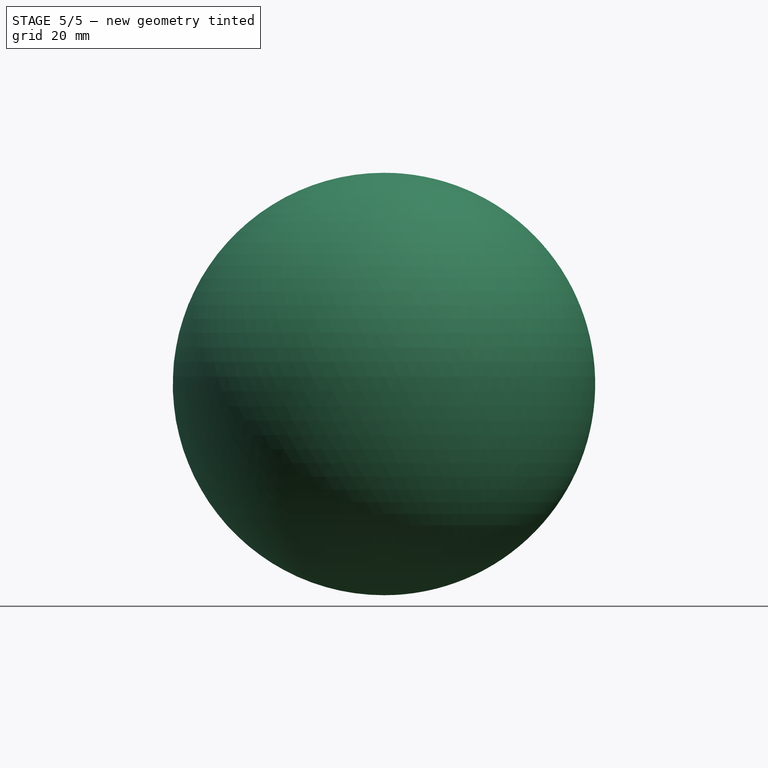
[diagram: stage 5 of 5 — front view after this stage's code; geometry added in this stage tinted green]
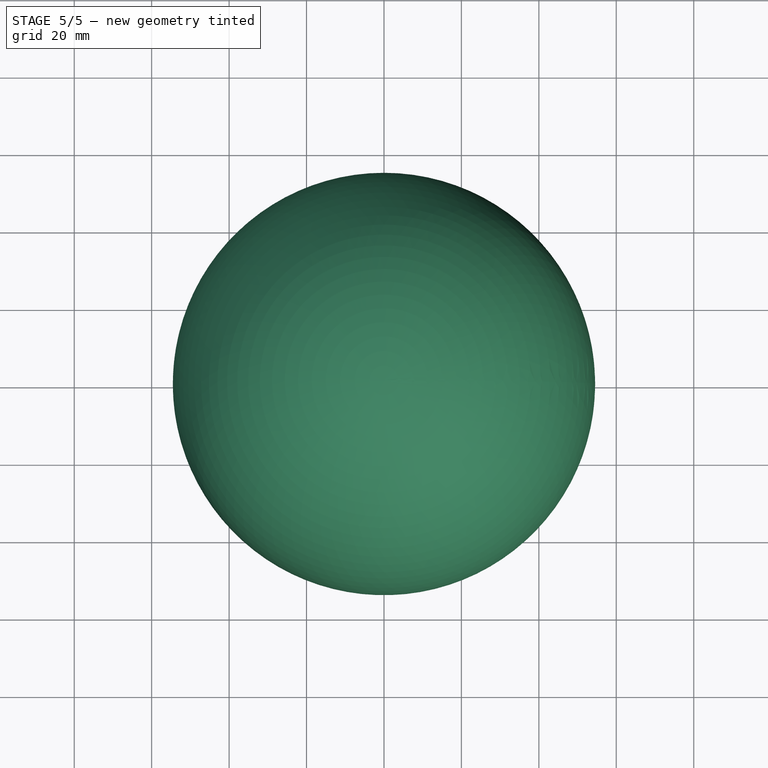
[diagram: stage 5 of 5 — top view after this stage's code; geometry added in this stage tinted green]
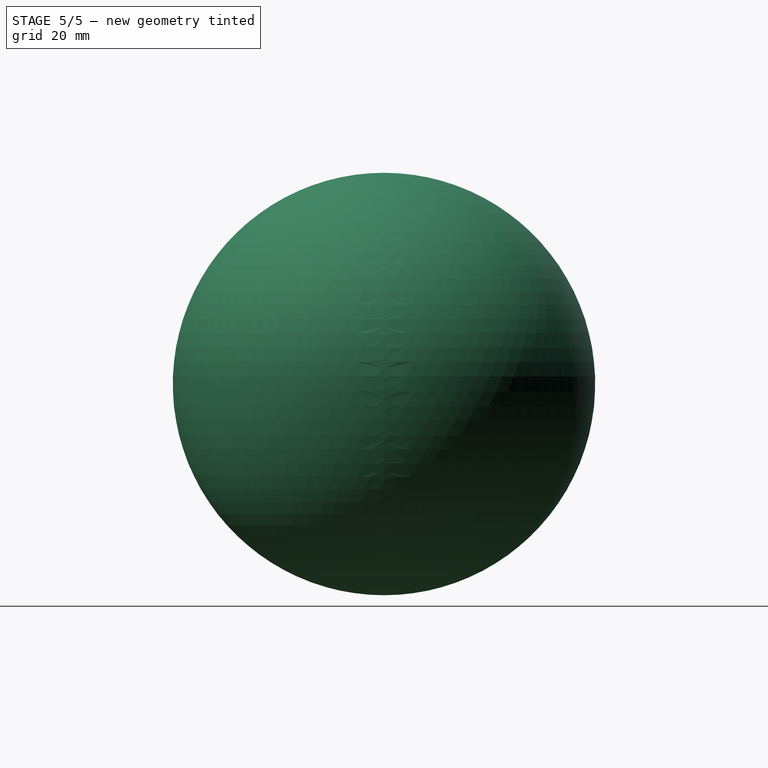
[diagram: stage 5 of 5 — right view after this stage's code; geometry added in this stage tinted green]
FEATURE [Sketcher::SketchObject] Sketch003
  FullyConstrained = false
  MapMode = 5
  Placement = pos=(0,0,0) rot=(1,0,0;1.5708rad)
  Support = -> [Pad]
  sketch-geometry (5):
    g0: GeomPoint X=4 Y=0 Z=0
    g1: LineSegment StartX=4 StartY=3.04911 StartZ=0 EndX=4 EndY=-3.04911 EndZ=0
    g2: LineSegment StartX=4 StartY=-3.04911 StartZ=0 EndX=5 EndY=-3.04911 EndZ=0
    g3: LineSegment StartX=5 StartY=-3.04911 StartZ=0 EndX=5 EndY=3.04911 EndZ=0
    g4: LineSegment StartX=5 StartY=3.04911 StartZ=0 EndX=4 EndY=3.04911 EndZ=0
  constraints (12):
    c: PointOnObject(g0,g-1)
    c: DistanceX(g-1,g0) = 4
    c: Coincident(g2,g1)
    c: Horizontal(g2)
    c: Coincident(g3,g2)
    c: Vertical(g3)
    c: Coincident(g4,g3)
    c: Coincident(g4,g1)
    c: Horizontal(g4)
    c: PointOnObject(g0,g1)
    c: DistanceX(g4,g4) = 1
    c: Symmetric(g1,g1,g-1)
FEATURE [PartDesign::Pocket] Pocket
  BaseFeature = -> Pad
  Direction = (1,1,1)
  Length = 5
  Length2 = 100
  Profile = -> Sketch003
  Type = 0
FEATURE [Sketcher::SketchObject] Sketch004
  ExternalGeometry = -> [Pocket]
  FullyConstrained = true
  MapMode = 5
  Placement = pos=(0,-27.5,6.1e-15) rot=(1,0,0;1.5708rad)
  Support = -> [Pocket]
  sketch-geometry (4):
    g0: LineSegment StartX=-2.155 StartY=0.25 StartZ=0 EndX=-1.655 EndY=0.25 EndZ=0
    g1: LineSegment StartX=-1.655 StartY=0.25 StartZ=0 EndX=-1.655 EndY=-0.25 EndZ=0
    g2: LineSegment StartX=-1.655 StartY=-0.25 StartZ=0 EndX=-2.155 EndY=-0.25 EndZ=0
    g3: LineSegment StartX=-2.155 StartY=-0.25 StartZ=0 EndX=-2.155 EndY=0.25 EndZ=0
  constraints (10):
    c: Coincident(g0,g1)
    c: Coincident(g1,g2)
    c: Coincident(g2,g3)
    c: Coincident(g3,g0)
    c: Horizontal(g0)
    c: Horizontal(g2)
    c: Vertical(g1)
    c: Vertical(g3)
    c: Coincident(g0,g-3)
    c: Coincident(g1,g-4)
FEATURE [PartDesign::Pocket] Pocket001
  BaseFeature = -> Pocket
  Direction = (1,1,1)
  Length = 2.7
  Length2 = 100
  Profile = -> Sketch004
  Type = 0
FEATURE [Sketcher::SketchObject] Sketch005
  ExternalGeometry = -> [Pocket001]
  FullyConstrained = true
  MapMode = 5
  Placement = pos=(0,-27.5,6.1e-15) rot=(1,0,0;1.5708rad)
  Support = -> [Pocket001]
  sketch-geometry (8):
    g0: LineSegment StartX=-0.885 StartY=0.25 StartZ=0 EndX=-0.385 EndY=0.25 EndZ=0
    g1: LineSegment StartX=-0.385 StartY=0.25 StartZ=0 EndX=-0.385 EndY=-0.25 EndZ=0
    g2: LineSegment StartX=-0.385 StartY=-0.25 StartZ=0 EndX=-0.885 EndY=-0.25 EndZ=0
    g3: LineSegment StartX=-0.885 StartY=-0.25 StartZ=0 EndX=-0.885 EndY=0.25 EndZ=0
    g4: LineSegment StartX=2.155 StartY=-0.25 StartZ=0 EndX=1.655 EndY=-0.25 EndZ=0
    g5: LineSegment StartX=1.655 StartY=-0.25 StartZ=0 EndX=1.655 EndY=0.25 EndZ=0
    g6: LineSegment StartX=1.655 StartY=0.25 StartZ=0 EndX=2.155 EndY=0.25 EndZ=0
    g7: LineSegment StartX=2.155 StartY=0.25 StartZ=0 EndX=2.155 EndY=-0.25 EndZ=0
  constraints (20):
    c: Coincident(g0,g1)
    c: Coincident(g1,g2)
    c: Coincident(g2,g3)
    c: Coincident(g3,g0)
    c: Horizontal(g0)
    c: Horizontal(g2)
    c: Vertical(g1)
    c: Vertical(g3)
    c: Coincident(g0,g-3)
    c: Coincident(g1,g-4)
    c: Coincident(g4,g5)
    c: Coincident(g5,g6)
    c: Coincident(g6,g7)
    c: Coincident(g7,g4)
    c: Horizontal(g4)
    c: Horizontal(g6)
    c: Vertical(g5)
    c: Vertical(g7)
    c: Coincident(g4,g-6)
    c: Coincident(g5,g-5)
FEATURE [PartDesign::Pocket] Pocket002
  BaseFeature = -> Pocket001
  Direction = (0,1,-2e-16)
  Length = 1.6
  Length2 = 100
  Profile = -> Sketch005
  Type = 0
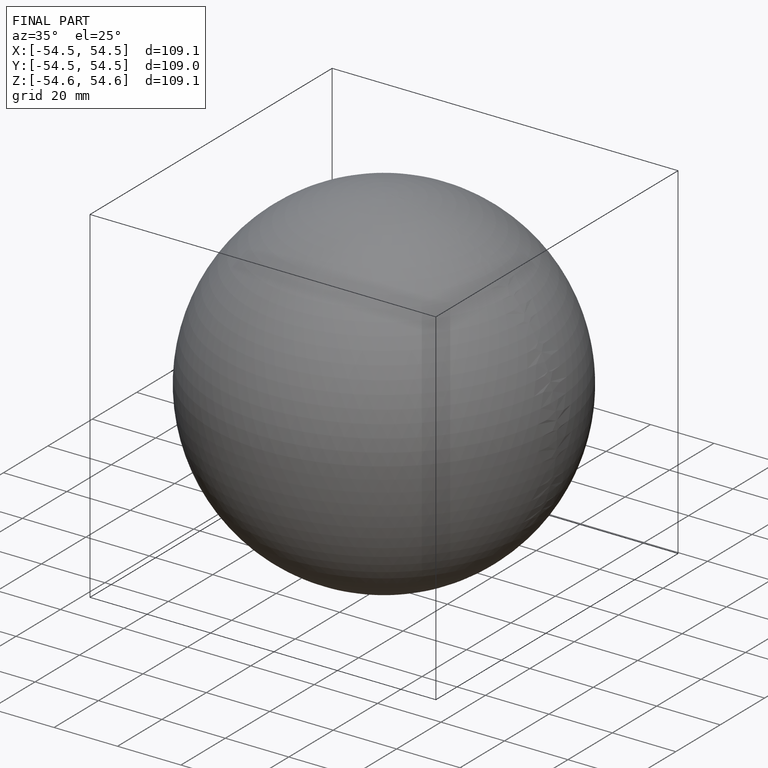
[diagram: finished part — iso view with bounding-box wireframe]
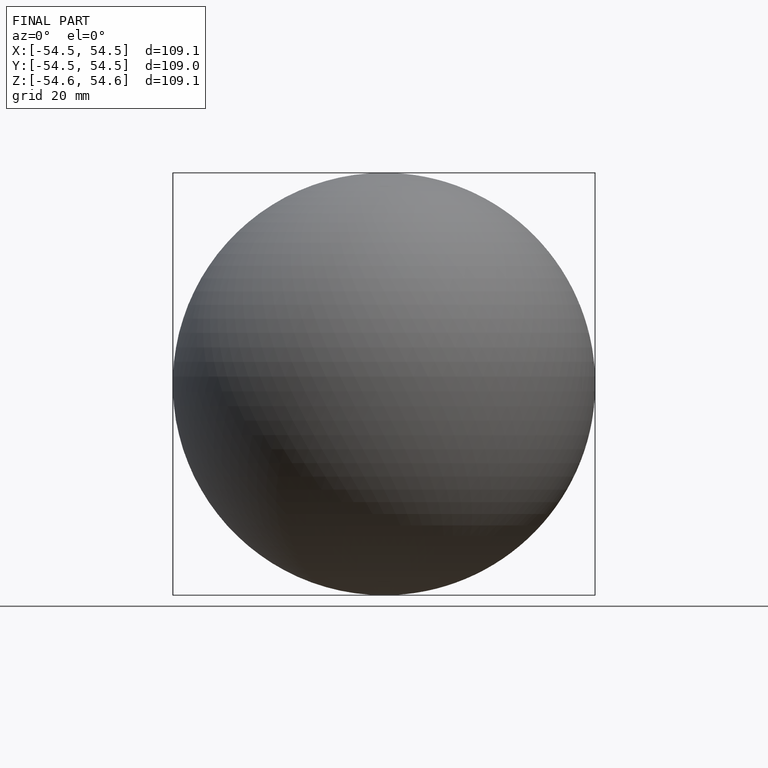
[diagram: finished part — front view with bounding-box wireframe]
